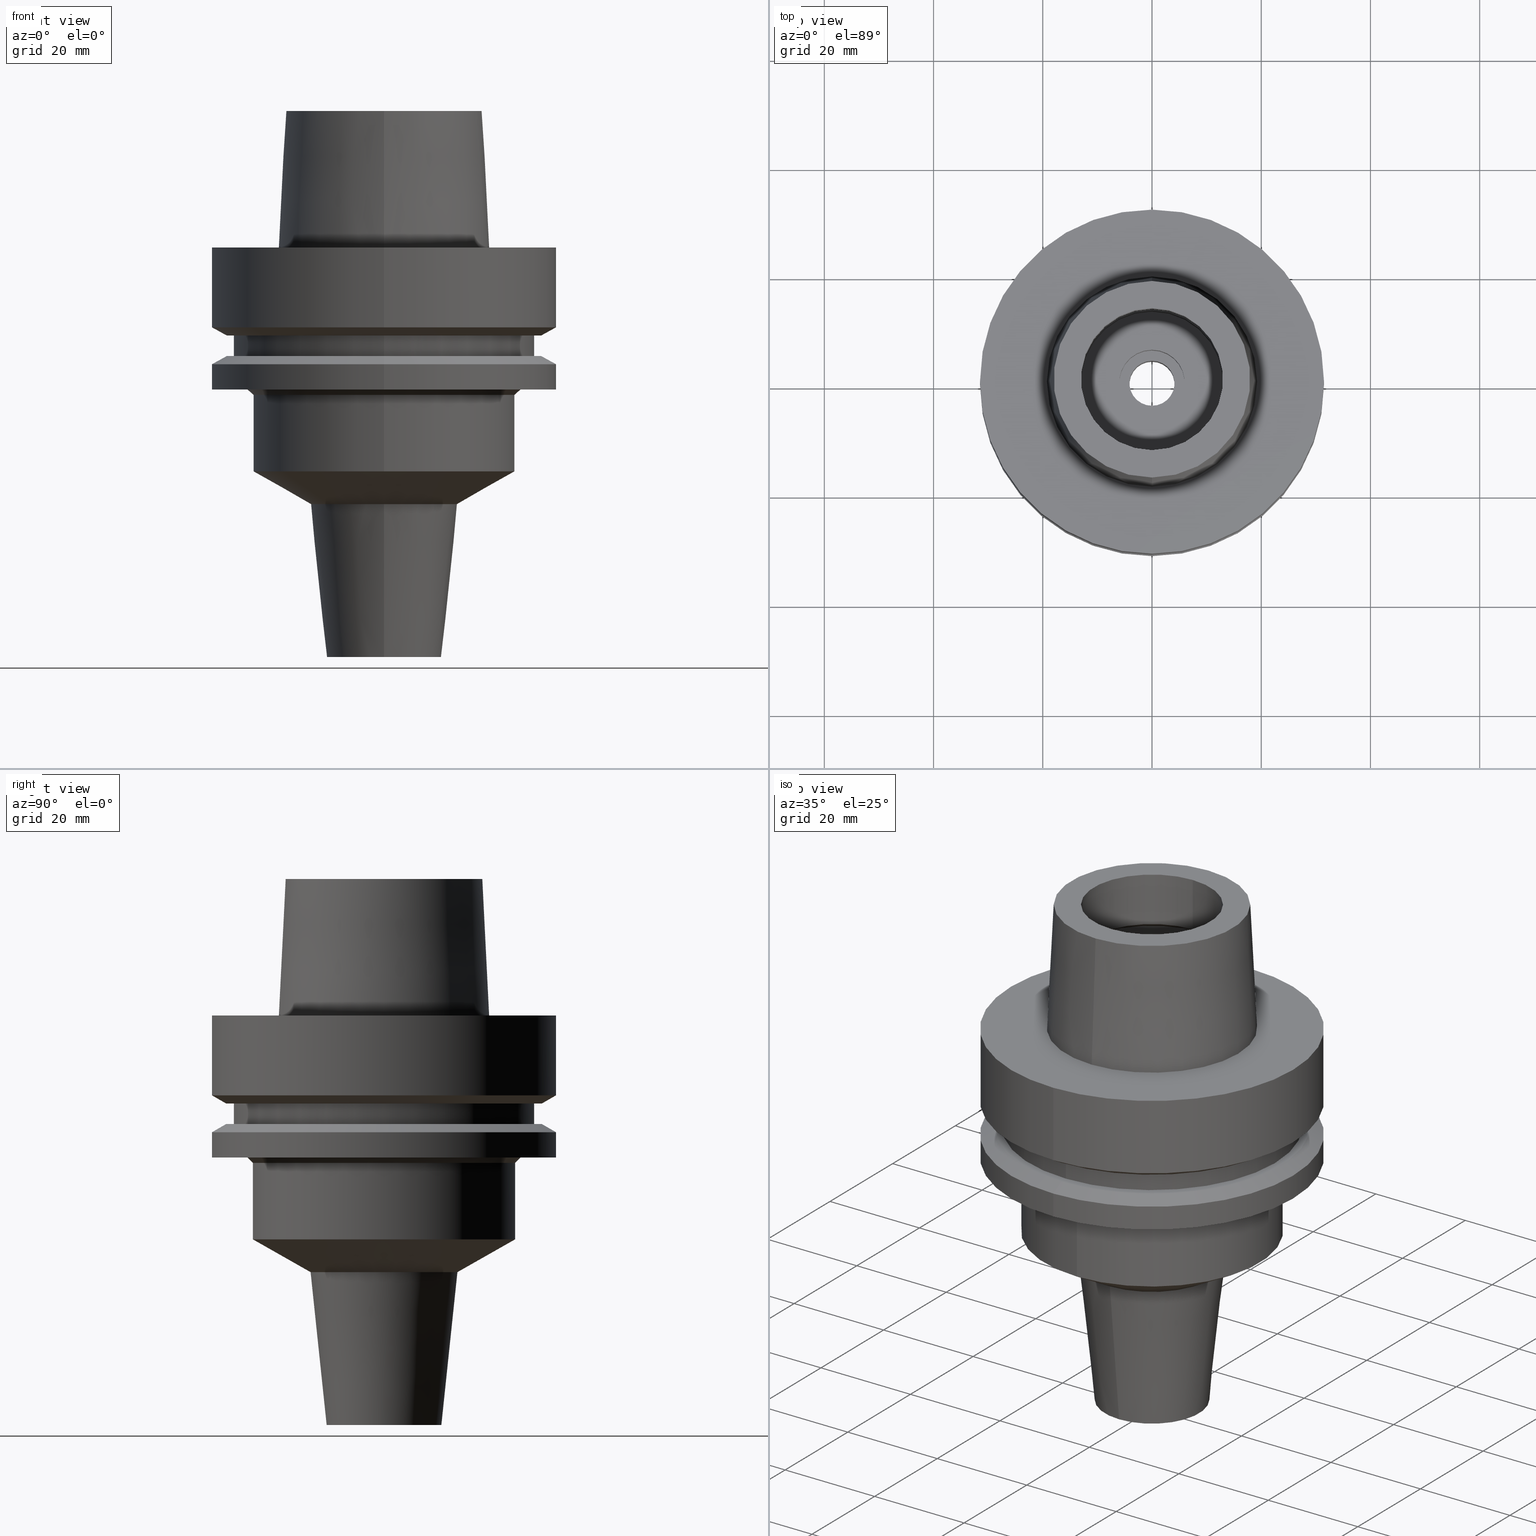
[diagram: canonical four-view strip — front | top / right | iso, engineering-drawing reading convention]
A machine part, canonical four-view strip (front | top / right | iso — engineering-drawing reading convention). The complete STEP part file that produces these views, byte-faithful:
ISO-10303-21;
HEADER;
FILE_DESCRIPTION((''),'2;1');
FILE_NAME('HSK-F63-HDC12S-75','2018-02-23T',('ykawabe'),(''),
'CREO PARAMETRIC BY PTC INC, 2016380','CREO PARAMETRIC BY PTC INC, 2016380','');
FILE_SCHEMA(('AUTOMOTIVE_DESIGN { 1 0 10303 214 1 1 1 1 }'));
ENDSEC;
DATA;
#17=CARTESIAN_POINT('',(0.E0,0.E0,2.5E1));
#18=DIRECTION('',(0.E0,0.E0,-1.E0));
#19=DIRECTION('',(0.E0,-1.E0,0.E0));
#20=AXIS2_PLACEMENT_3D('',#17,#18,#19);
#22=DRAUGHTING_PRE_DEFINED_CURVE_FONT('continuous');
#23=CURVE_STYLE('',#22,POSITIVE_LENGTH_MEASURE(2.E-2),#4);
#24=PRESENTATION_STYLE_ASSIGNMENT((#23));
#25=STYLED_ITEM('',(#24),#21);
#26=CARTESIAN_POINT('',(0.E0,0.E0,2.5E1));
#27=DIRECTION('',(0.E0,0.E0,-1.E0));
#28=DIRECTION('',(0.E0,1.E0,0.E0));
#29=AXIS2_PLACEMENT_3D('',#26,#27,#28);
#31=CURVE_STYLE('',#22,POSITIVE_LENGTH_MEASURE(2.E-2),#4);
#32=PRESENTATION_STYLE_ASSIGNMENT((#31));
#33=STYLED_ITEM('',(#32),#30);
#34=CARTESIAN_POINT('',(0.E0,0.E0,2.5E1));
#35=DIRECTION('',(0.E0,0.E0,1.E0));
#36=DIRECTION('',(0.E0,-1.E0,0.E0));
#37=AXIS2_PLACEMENT_3D('',#34,#35,#36);
#39=CURVE_STYLE('',#22,POSITIVE_LENGTH_MEASURE(2.E-2),#4);
#40=PRESENTATION_STYLE_ASSIGNMENT((#39));
#41=STYLED_ITEM('',(#40),#38);
#42=CARTESIAN_POINT('',(0.E0,0.E0,2.5E1));
#43=DIRECTION('',(0.E0,0.E0,1.E0));
#44=DIRECTION('',(0.E0,1.E0,0.E0));
#45=AXIS2_PLACEMENT_3D('',#42,#43,#44);
#47=CURVE_STYLE('',#22,POSITIVE_LENGTH_MEASURE(2.E-2),#4);
#48=PRESENTATION_STYLE_ASSIGNMENT((#47));
#49=STYLED_ITEM('',(#48),#46);
#50=DIRECTION('',(0.E0,-4.993752584487E-2,-9.987523434328E-1));
#51=VECTOR('',#50,2.503123037897E1);
#52=CARTESIAN_POINT('',(0.E0,-1.800000182882E1,2.5E1));
#53=LINE('',#52,#51);
#54=CURVE_STYLE('',#22,POSITIVE_LENGTH_MEASURE(2.E-2),#4);
#55=PRESENTATION_STYLE_ASSIGNMENT((#54));
#56=STYLED_ITEM('',(#55),#53);
#57=DIRECTION('',(0.E0,4.993752584487E-2,-9.987523434328E-1));
#58=VECTOR('',#57,2.503123037897E1);
#59=CARTESIAN_POINT('',(0.E0,1.800000182882E1,2.5E1));
#60=LINE('',#59,#58);
#61=CURVE_STYLE('',#22,POSITIVE_LENGTH_MEASURE(2.E-2),#4);
#62=PRESENTATION_STYLE_ASSIGNMENT((#61));
#63=STYLED_ITEM('',(#62),#60);
#64=CARTESIAN_POINT('',(0.E0,0.E0,0.E0));
#65=DIRECTION('',(0.E0,0.E0,-1.E0));
#66=DIRECTION('',(0.E0,-1.E0,0.E0));
#67=AXIS2_PLACEMENT_3D('',#64,#65,#66);
#69=CURVE_STYLE('',#22,POSITIVE_LENGTH_MEASURE(2.E-2),#4);
#70=PRESENTATION_STYLE_ASSIGNMENT((#69));
#71=STYLED_ITEM('',(#70),#68);
#72=CARTESIAN_POINT('',(0.E0,0.E0,0.E0));
#73=DIRECTION('',(0.E0,0.E0,-1.E0));
#74=DIRECTION('',(0.E0,1.E0,0.E0));
#75=AXIS2_PLACEMENT_3D('',#72,#73,#74);
#77=CURVE_STYLE('',#22,POSITIVE_LENGTH_MEASURE(2.E-2),#4);
#78=PRESENTATION_STYLE_ASSIGNMENT((#77));
#79=STYLED_ITEM('',(#78),#76);
#80=CARTESIAN_POINT('',(0.E0,0.E0,2.273736754432E-13));
#81=DIRECTION('',(0.E0,0.E0,1.E0));
#82=DIRECTION('',(0.E0,-1.E0,0.E0));
#83=AXIS2_PLACEMENT_3D('',#80,#81,#82);
#85=CURVE_STYLE('',#22,POSITIVE_LENGTH_MEASURE(2.E-2),#4);
#86=PRESENTATION_STYLE_ASSIGNMENT((#85));
#87=STYLED_ITEM('',(#86),#84);
#88=CARTESIAN_POINT('',(0.E0,0.E0,2.273736754432E-13));
#89=DIRECTION('',(0.E0,0.E0,1.E0));
#90=DIRECTION('',(0.E0,1.E0,0.E0));
#91=AXIS2_PLACEMENT_3D('',#88,#89,#90);
#93=CURVE_STYLE('',#22,POSITIVE_LENGTH_MEASURE(2.E-2),#4);
#94=PRESENTATION_STYLE_ASSIGNMENT((#93));
#95=STYLED_ITEM('',(#94),#92);
#96=DIRECTION('',(0.E0,-4.130355870613E-14,-1.E0));
#97=VECTOR('',#96,1.462250092524E1);
#98=CARTESIAN_POINT('',(0.E0,-3.15E1,0.E0));
#99=LINE('',#98,#97);
#100=CURVE_STYLE('',#22,POSITIVE_LENGTH_MEASURE(2.E-2),#4);
#101=PRESENTATION_STYLE_ASSIGNMENT((#100));
#102=STYLED_ITEM('',(#101),#99);
#103=DIRECTION('',(0.E0,4.130355870613E-14,-1.E0));
#104=VECTOR('',#103,1.462250092524E1);
#105=CARTESIAN_POINT('',(0.E0,3.15E1,0.E0));
#106=LINE('',#105,#104);
#107=CURVE_STYLE('',#22,POSITIVE_LENGTH_MEASURE(2.E-2),#4);
#108=PRESENTATION_STYLE_ASSIGNMENT((#107));
#109=STYLED_ITEM('',(#108),#106);
#110=DIRECTION('',(0.E0,-8.660254037844E-1,-5.000000000001E-1));
#111=VECTOR('',#110,3.004998149520E0);
#112=CARTESIAN_POINT('',(0.E0,3.15E1,-1.462250092524E1));
#113=LINE('',#112,#111);
#114=CURVE_STYLE('',#22,POSITIVE_LENGTH_MEASURE(2.E-2),#4);
#115=PRESENTATION_STYLE_ASSIGNMENT((#114));
#116=STYLED_ITEM('',(#115),#113);
#117=CARTESIAN_POINT('',(0.E0,0.E0,-1.462250092524E1));
#118=DIRECTION('',(0.E0,0.E0,1.E0));
#119=DIRECTION('',(0.E0,-1.E0,0.E0));
#120=AXIS2_PLACEMENT_3D('',#117,#118,#119);
#122=CURVE_STYLE('',#22,POSITIVE_LENGTH_MEASURE(2.E-2),#4);
#123=PRESENTATION_STYLE_ASSIGNMENT((#122));
#124=STYLED_ITEM('',(#123),#121);
#125=CARTESIAN_POINT('',(0.E0,0.E0,-1.462250092524E1));
#126=DIRECTION('',(0.E0,0.E0,1.E0));
#127=DIRECTION('',(0.E0,1.E0,0.E0));
#128=AXIS2_PLACEMENT_3D('',#125,#126,#127);
#130=CURVE_STYLE('',#22,POSITIVE_LENGTH_MEASURE(2.E-2),#4);
#131=PRESENTATION_STYLE_ASSIGNMENT((#130));
#132=STYLED_ITEM('',(#131),#129);
#133=DIRECTION('',(0.E0,8.660254037844E-1,-5.000000000001E-1));
#134=VECTOR('',#133,3.004998149520E0);
#135=CARTESIAN_POINT('',(0.E0,-3.15E1,-1.462250092524E1));
#136=LINE('',#135,#134);
#137=CURVE_STYLE('',#22,POSITIVE_LENGTH_MEASURE(2.E-2),#4);
#138=PRESENTATION_STYLE_ASSIGNMENT((#137));
#139=STYLED_ITEM('',(#138),#136);
#140=CARTESIAN_POINT('',(0.E0,0.E0,-1.6125E1));
#141=DIRECTION('',(0.E0,0.E0,1.E0));
#142=DIRECTION('',(0.E0,-1.E0,0.E0));
#143=AXIS2_PLACEMENT_3D('',#140,#141,#142);
#145=CURVE_STYLE('',#22,POSITIVE_LENGTH_MEASURE(2.E-2),#4);
#146=PRESENTATION_STYLE_ASSIGNMENT((#145));
#147=STYLED_ITEM('',(#146),#144);
#148=CARTESIAN_POINT('',(0.E0,0.E0,-1.6125E1));
#149=DIRECTION('',(0.E0,0.E0,1.E0));
#150=DIRECTION('',(0.E0,1.E0,0.E0));
#151=AXIS2_PLACEMENT_3D('',#148,#149,#150);
#153=CURVE_STYLE('',#22,POSITIVE_LENGTH_MEASURE(2.E-2),#4);
#154=PRESENTATION_STYLE_ASSIGNMENT((#153));
#155=STYLED_ITEM('',(#154),#152);
#156=CARTESIAN_POINT('',(0.E0,0.E0,-1.6125E1));
#157=DIRECTION('',(0.E0,0.E0,-1.E0));
#158=DIRECTION('',(0.E0,-1.E0,0.E0));
#159=AXIS2_PLACEMENT_3D('',#156,#157,#158);
#161=CURVE_STYLE('',#22,POSITIVE_LENGTH_MEASURE(2.E-2),#4);
#162=PRESENTATION_STYLE_ASSIGNMENT((#161));
#163=STYLED_ITEM('',(#162),#160);
#164=CARTESIAN_POINT('',(0.E0,0.E0,-1.6125E1));
#165=DIRECTION('',(0.E0,0.E0,-1.E0));
#166=DIRECTION('',(0.E0,1.E0,0.E0));
#167=AXIS2_PLACEMENT_3D('',#164,#165,#166);
#169=CURVE_STYLE('',#22,POSITIVE_LENGTH_MEASURE(2.E-2),#4);
#170=PRESENTATION_STYLE_ASSIGNMENT((#169));
#171=STYLED_ITEM('',(#170),#168);
#172=DIRECTION('',(0.E0,0.E0,-1.E0));
#173=VECTOR('',#172,3.75E0);
#174=CARTESIAN_POINT('',(0.E0,-2.75E1,-1.6125E1));
#175=LINE('',#174,#173);
#176=CURVE_STYLE('',#22,POSITIVE_LENGTH_MEASURE(2.E-2),#4);
#177=PRESENTATION_STYLE_ASSIGNMENT((#176));
#178=STYLED_ITEM('',(#177),#175);
#179=DIRECTION('',(0.E0,0.E0,-1.E0));
#180=VECTOR('',#179,3.75E0);
#181=CARTESIAN_POINT('',(0.E0,2.75E1,-1.6125E1));
#182=LINE('',#181,#180);
#183=CURVE_STYLE('',#22,POSITIVE_LENGTH_MEASURE(2.E-2),#4);
#184=PRESENTATION_STYLE_ASSIGNMENT((#183));
#185=STYLED_ITEM('',(#184),#182);
#186=CARTESIAN_POINT('',(0.E0,0.E0,-1.9875E1));
#187=DIRECTION('',(0.E0,0.E0,-1.E0));
#188=DIRECTION('',(0.E0,-1.E0,0.E0));
#189=AXIS2_PLACEMENT_3D('',#186,#187,#188);
#191=CURVE_STYLE('',#22,POSITIVE_LENGTH_MEASURE(2.E-2),#4);
#192=PRESENTATION_STYLE_ASSIGNMENT((#191));
#193=STYLED_ITEM('',(#192),#190);
#194=CARTESIAN_POINT('',(0.E0,0.E0,-1.9875E1));
#195=DIRECTION('',(0.E0,0.E0,-1.E0));
#196=DIRECTION('',(0.E0,1.E0,0.E0));
#197=AXIS2_PLACEMENT_3D('',#194,#195,#196);
#199=CURVE_STYLE('',#22,POSITIVE_LENGTH_MEASURE(2.E-2),#4);
#200=PRESENTATION_STYLE_ASSIGNMENT((#199));
#201=STYLED_ITEM('',(#200),#198);
#202=CARTESIAN_POINT('',(0.E0,0.E0,-1.9875E1));
#203=DIRECTION('',(0.E0,0.E0,1.E0));
#204=DIRECTION('',(0.E0,-1.E0,0.E0));
#205=AXIS2_PLACEMENT_3D('',#202,#203,#204);
#207=CURVE_STYLE('',#22,POSITIVE_LENGTH_MEASURE(2.E-2),#4);
#208=PRESENTATION_STYLE_ASSIGNMENT((#207));
#209=STYLED_ITEM('',(#208),#206);
#210=CARTESIAN_POINT('',(0.E0,0.E0,-1.9875E1));
#211=DIRECTION('',(0.E0,0.E0,1.E0));
#212=DIRECTION('',(0.E0,1.E0,0.E0));
#213=AXIS2_PLACEMENT_3D('',#210,#211,#212);
#215=CURVE_STYLE('',#22,POSITIVE_LENGTH_MEASURE(2.E-2),#4);
#216=PRESENTATION_STYLE_ASSIGNMENT((#215));
#217=STYLED_ITEM('',(#216),#214);
#218=DIRECTION('',(0.E0,-8.660254037844E-1,-5.000000000001E-1));
#219=VECTOR('',#218,3.004998149520E0);
#220=CARTESIAN_POINT('',(0.E0,-2.889759526419E1,-1.9875E1));
#221=LINE('',#220,#219);
#222=CURVE_STYLE('',#22,POSITIVE_LENGTH_MEASURE(2.E-2),#4);
#223=PRESENTATION_STYLE_ASSIGNMENT((#222));
#224=STYLED_ITEM('',(#223),#221);
#225=CARTESIAN_POINT('',(0.E0,0.E0,-2.137749907476E1));
#226=DIRECTION('',(0.E0,0.E0,-1.E0));
#227=DIRECTION('',(0.E0,-1.E0,0.E0));
#228=AXIS2_PLACEMENT_3D('',#225,#226,#227);
#230=CURVE_STYLE('',#22,POSITIVE_LENGTH_MEASURE(2.E-2),#4);
#231=PRESENTATION_STYLE_ASSIGNMENT((#230));
#232=STYLED_ITEM('',(#231),#229);
#233=DIRECTION('',(0.E0,8.660254037844E-1,-5.000000000001E-1));
#234=VECTOR('',#233,3.004998149520E0);
#235=CARTESIAN_POINT('',(0.E0,2.889759526419E1,-1.9875E1));
#236=LINE('',#235,#234);
#237=CURVE_STYLE('',#22,POSITIVE_LENGTH_MEASURE(2.E-2),#4);
#238=PRESENTATION_STYLE_ASSIGNMENT((#237));
#239=STYLED_ITEM('',(#238),#236);
#240=CARTESIAN_POINT('',(0.E0,0.E0,-2.137749907476E1));
#241=DIRECTION('',(0.E0,0.E0,-1.E0));
#242=DIRECTION('',(0.E0,1.E0,0.E0));
#243=AXIS2_PLACEMENT_3D('',#240,#241,#242);
#245=CURVE_STYLE('',#22,POSITIVE_LENGTH_MEASURE(2.E-2),#4);
#246=PRESENTATION_STYLE_ASSIGNMENT((#245));
#247=STYLED_ITEM('',(#246),#244);
#248=DIRECTION('',(0.E0,-1.306568316943E-13,-1.E0));
#249=VECTOR('',#248,4.622500925241E0);
#250=CARTESIAN_POINT('',(0.E0,3.15E1,-2.137749907476E1));
#251=LINE('',#250,#249);
#252=CURVE_STYLE('',#22,POSITIVE_LENGTH_MEASURE(2.E-2),#4);
#253=PRESENTATION_STYLE_ASSIGNMENT((#252));
#254=STYLED_ITEM('',(#253),#251);
#255=DIRECTION('',(0.E0,1.306568316943E-13,-1.E0));
#256=VECTOR('',#255,4.622500925241E0);
#257=CARTESIAN_POINT('',(0.E0,-3.15E1,-2.137749907476E1));
#258=LINE('',#257,#256);
#259=CURVE_STYLE('',#22,POSITIVE_LENGTH_MEASURE(2.E-2),#4);
#260=PRESENTATION_STYLE_ASSIGNMENT((#259));
#261=STYLED_ITEM('',(#260),#258);
#262=CARTESIAN_POINT('',(0.E0,0.E0,-2.6E1));
#263=DIRECTION('',(0.E0,0.E0,1.E0));
#264=DIRECTION('',(0.E0,-1.E0,0.E0));
#265=AXIS2_PLACEMENT_3D('',#262,#263,#264);
#267=CURVE_STYLE('',#22,POSITIVE_LENGTH_MEASURE(2.E-2),#4);
#268=PRESENTATION_STYLE_ASSIGNMENT((#267));
#269=STYLED_ITEM('',(#268),#266);
#270=CARTESIAN_POINT('',(0.E0,0.E0,-2.6E1));
#271=DIRECTION('',(0.E0,0.E0,1.E0));
#272=DIRECTION('',(0.E0,1.E0,0.E0));
#273=AXIS2_PLACEMENT_3D('',#270,#271,#272);
#275=CURVE_STYLE('',#22,POSITIVE_LENGTH_MEASURE(2.E-2),#4);
#276=PRESENTATION_STYLE_ASSIGNMENT((#275));
#277=STYLED_ITEM('',(#276),#274);
#278=CARTESIAN_POINT('',(0.E0,0.E0,-2.6E1));
#279=DIRECTION('',(0.E0,0.E0,-1.E0));
#280=DIRECTION('',(0.E0,-1.E0,0.E0));
#281=AXIS2_PLACEMENT_3D('',#278,#279,#280);
#283=CURVE_STYLE('',#22,POSITIVE_LENGTH_MEASURE(2.E-2),#4);
#284=PRESENTATION_STYLE_ASSIGNMENT((#283));
#285=STYLED_ITEM('',(#284),#282);
#286=CARTESIAN_POINT('',(0.E0,0.E0,-2.6E1));
#287=DIRECTION('',(0.E0,0.E0,-1.E0));
#288=DIRECTION('',(0.E0,1.E0,0.E0));
#289=AXIS2_PLACEMENT_3D('',#286,#287,#288);
#291=CURVE_STYLE('',#22,POSITIVE_LENGTH_MEASURE(2.E-2),#4);
#292=PRESENTATION_STYLE_ASSIGNMENT((#291));
#293=STYLED_ITEM('',(#292),#290);
#294=DIRECTION('',(0.E0,7.071067811865E-1,-7.071067811865E-1));
#295=VECTOR('',#294,1.414213562373E0);
#296=CARTESIAN_POINT('',(0.E0,-2.5E1,-2.6E1));
#297=LINE('',#296,#295);
#298=CURVE_STYLE('',#22,POSITIVE_LENGTH_MEASURE(2.E-2),#4);
#299=PRESENTATION_STYLE_ASSIGNMENT((#298));
#300=STYLED_ITEM('',(#299),#297);
#301=CARTESIAN_POINT('',(0.E0,0.E0,-2.7E1));
#302=DIRECTION('',(0.E0,0.E0,-1.E0));
#303=DIRECTION('',(0.E0,-1.E0,0.E0));
#304=AXIS2_PLACEMENT_3D('',#301,#302,#303);
#306=CURVE_STYLE('',#22,POSITIVE_LENGTH_MEASURE(2.E-2),#4);
#307=PRESENTATION_STYLE_ASSIGNMENT((#306));
#308=STYLED_ITEM('',(#307),#305);
#309=DIRECTION('',(0.E0,-7.071067811865E-1,-7.071067811865E-1));
#310=VECTOR('',#309,1.414213562373E0);
#311=CARTESIAN_POINT('',(0.E0,2.5E1,-2.6E1));
#312=LINE('',#311,#310);
#313=CURVE_STYLE('',#22,POSITIVE_LENGTH_MEASURE(2.E-2),#4);
#314=PRESENTATION_STYLE_ASSIGNMENT((#313));
#315=STYLED_ITEM('',(#314),#312);
#316=CARTESIAN_POINT('',(0.E0,0.E0,-2.7E1));
#317=DIRECTION('',(0.E0,0.E0,-1.E0));
#318=DIRECTION('',(0.E0,1.E0,0.E0));
#319=AXIS2_PLACEMENT_3D('',#316,#317,#318);
#321=CURVE_STYLE('',#22,POSITIVE_LENGTH_MEASURE(2.E-2),#4);
#322=PRESENTATION_STYLE_ASSIGNMENT((#321));
#323=STYLED_ITEM('',(#322),#320);
#324=DIRECTION('',(0.E0,4.212503362006E-14,-1.E0));
#325=VECTOR('',#324,1.4E1);
#326=CARTESIAN_POINT('',(0.E0,2.4E1,-2.7E1));
#327=LINE('',#326,#325);
#328=CURVE_STYLE('',#22,POSITIVE_LENGTH_MEASURE(2.E-2),#4);
#329=PRESENTATION_STYLE_ASSIGNMENT((#328));
#330=STYLED_ITEM('',(#329),#327);
#331=DIRECTION('',(0.E0,-4.212503362006E-14,-1.E0));
#332=VECTOR('',#331,1.4E1);
#333=CARTESIAN_POINT('',(0.E0,-2.4E1,-2.7E1));
#334=LINE('',#333,#332);
#335=CURVE_STYLE('',#22,POSITIVE_LENGTH_MEASURE(2.E-2),#4);
#336=PRESENTATION_STYLE_ASSIGNMENT((#335));
#337=STYLED_ITEM('',(#336),#334);
#338=CARTESIAN_POINT('',(0.E0,0.E0,-4.1E1));
#339=DIRECTION('',(0.E0,0.E0,1.E0));
#340=DIRECTION('',(0.E0,1.E0,0.E0));
#341=AXIS2_PLACEMENT_3D('',#338,#339,#340);
#343=CURVE_STYLE('',#22,POSITIVE_LENGTH_MEASURE(2.E-2),#4);
#344=PRESENTATION_STYLE_ASSIGNMENT((#343));
#345=STYLED_ITEM('',(#344),#342);
#346=DIRECTION('',(0.E0,8.694949295053E-1,-4.939418665841E-1));
#347=VECTOR('',#346,1.214127240966E1);
#348=CARTESIAN_POINT('',(0.E0,-2.4E1,-4.1E1));
#349=LINE('',#348,#347);
#350=CURVE_STYLE('',#22,POSITIVE_LENGTH_MEASURE(2.E-2),#4);
#351=PRESENTATION_STYLE_ASSIGNMENT((#350));
#352=STYLED_ITEM('',(#351),#349);
#353=CARTESIAN_POINT('',(0.E0,0.E0,-4.699708275674E1));
#354=DIRECTION('',(0.E0,0.E0,-1.E0));
#355=DIRECTION('',(0.E0,-1.E0,0.E0));
#356=AXIS2_PLACEMENT_3D('',#353,#354,#355);
#358=CURVE_STYLE('',#22,POSITIVE_LENGTH_MEASURE(2.E-2),#4);
#359=PRESENTATION_STYLE_ASSIGNMENT((#358));
#360=STYLED_ITEM('',(#359),#357);
#361=DIRECTION('',(0.E0,-8.694949295053E-1,-4.939418665841E-1));
#362=VECTOR('',#361,1.214127240966E1);
#363=CARTESIAN_POINT('',(0.E0,2.4E1,-4.1E1));
#364=LINE('',#363,#362);
#365=CURVE_STYLE('',#22,POSITIVE_LENGTH_MEASURE(2.E-2),#4);
#366=PRESENTATION_STYLE_ASSIGNMENT((#365));
#367=STYLED_ITEM('',(#366),#364);
#368=CARTESIAN_POINT('',(0.E0,0.E0,-4.1E1));
#369=DIRECTION('',(0.E0,0.E0,1.E0));
#370=DIRECTION('',(0.E0,-1.E0,0.E0));
#371=AXIS2_PLACEMENT_3D('',#368,#369,#370);
#373=CURVE_STYLE('',#22,POSITIVE_LENGTH_MEASURE(2.E-2),#4);
#374=PRESENTATION_STYLE_ASSIGNMENT((#373));
#375=STYLED_ITEM('',(#374),#372);
#376=DIRECTION('',(0.E0,-1.045284632677E-1,-9.945218953683E-1));
#377=VECTOR('',#376,2.815716514004E1);
#378=CARTESIAN_POINT('',(0.E0,1.344322520206E1,-4.699708275673E1));
#379=LINE('',#378,#377);
#380=CURVE_STYLE('',#22,POSITIVE_LENGTH_MEASURE(2.E-2),#4);
#381=PRESENTATION_STYLE_ASSIGNMENT((#380));
#382=STYLED_ITEM('',(#381),#379);
#383=CARTESIAN_POINT('',(0.E0,0.E0,-4.699708275673E1));
#384=DIRECTION('',(0.E0,0.E0,1.E0));
#385=DIRECTION('',(0.E0,-1.E0,0.E0));
#386=AXIS2_PLACEMENT_3D('',#383,#384,#385);
#388=CURVE_STYLE('',#22,POSITIVE_LENGTH_MEASURE(2.E-2),#4);
#389=PRESENTATION_STYLE_ASSIGNMENT((#388));
#390=STYLED_ITEM('',(#389),#387);
#391=DIRECTION('',(0.E0,1.045284632677E-1,-9.945218953683E-1));
#392=VECTOR('',#391,2.815716514004E1);
#393=CARTESIAN_POINT('',(0.E0,-1.344322520206E1,-4.699708275673E1));
#394=LINE('',#393,#392);
#395=CURVE_STYLE('',#22,POSITIVE_LENGTH_MEASURE(2.E-2),#4);
#396=PRESENTATION_STYLE_ASSIGNMENT((#395));
#397=STYLED_ITEM('',(#396),#394);
#398=CARTESIAN_POINT('',(0.E0,0.E0,-7.5E1));
#399=DIRECTION('',(0.E0,0.E0,1.E0));
#400=DIRECTION('',(0.E0,-1.E0,0.E0));
#401=AXIS2_PLACEMENT_3D('',#398,#399,#400);
#403=CURVE_STYLE('',#22,POSITIVE_LENGTH_MEASURE(2.E-2),#4);
#404=PRESENTATION_STYLE_ASSIGNMENT((#403));
#405=STYLED_ITEM('',(#404),#402);
#406=CARTESIAN_POINT('',(0.E0,0.E0,-7.5E1));
#407=DIRECTION('',(0.E0,0.E0,1.E0));
#408=DIRECTION('',(0.E0,1.E0,0.E0));
#409=AXIS2_PLACEMENT_3D('',#406,#407,#408);
#411=CURVE_STYLE('',#22,POSITIVE_LENGTH_MEASURE(2.E-2),#4);
#412=PRESENTATION_STYLE_ASSIGNMENT((#411));
#413=STYLED_ITEM('',(#412),#410);
#414=CARTESIAN_POINT('',(0.E0,0.E0,-7.5E1));
#415=DIRECTION('',(0.E0,0.E0,-1.E0));
#416=DIRECTION('',(0.E0,-1.E0,0.E0));
#417=AXIS2_PLACEMENT_3D('',#414,#415,#416);
#419=CURVE_STYLE('',#22,POSITIVE_LENGTH_MEASURE(2.E-2),#4);
#420=PRESENTATION_STYLE_ASSIGNMENT((#419));
#421=STYLED_ITEM('',(#420),#418);
#422=CARTESIAN_POINT('',(0.E0,0.E0,-7.5E1));
#423=DIRECTION('',(0.E0,0.E0,-1.E0));
#424=DIRECTION('',(0.E0,1.E0,0.E0));
#425=AXIS2_PLACEMENT_3D('',#422,#423,#424);
#427=CURVE_STYLE('',#22,POSITIVE_LENGTH_MEASURE(2.E-2),#4);
#428=PRESENTATION_STYLE_ASSIGNMENT((#427));
#429=STYLED_ITEM('',(#428),#426);
#430=DIRECTION('',(0.E0,0.E0,1.E0));
#431=VECTOR('',#430,3.6E1);
#432=CARTESIAN_POINT('',(0.E0,-6.E0,-7.5E1));
#433=LINE('',#432,#431);
#434=CURVE_STYLE('',#22,POSITIVE_LENGTH_MEASURE(2.E-2),#4);
#435=PRESENTATION_STYLE_ASSIGNMENT((#434));
#436=STYLED_ITEM('',(#435),#433);
#437=DIRECTION('',(0.E0,0.E0,1.E0));
#438=VECTOR('',#437,3.6E1);
#439=CARTESIAN_POINT('',(0.E0,6.E0,-7.5E1));
#440=LINE('',#439,#438);
#441=CURVE_STYLE('',#22,POSITIVE_LENGTH_MEASURE(2.E-2),#4);
#442=PRESENTATION_STYLE_ASSIGNMENT((#441));
#443=STYLED_ITEM('',(#442),#440);
#444=CARTESIAN_POINT('',(0.E0,0.E0,-3.9E1));
#445=DIRECTION('',(0.E0,0.E0,-1.E0));
#446=DIRECTION('',(0.E0,-1.E0,0.E0));
#447=AXIS2_PLACEMENT_3D('',#444,#445,#446);
#449=CURVE_STYLE('',#22,POSITIVE_LENGTH_MEASURE(2.E-2),#4);
#450=PRESENTATION_STYLE_ASSIGNMENT((#449));
#451=STYLED_ITEM('',(#450),#448);
#452=CARTESIAN_POINT('',(0.E0,0.E0,-3.9E1));
#453=DIRECTION('',(0.E0,0.E0,-1.E0));
#454=DIRECTION('',(0.E0,1.E0,0.E0));
#455=AXIS2_PLACEMENT_3D('',#452,#453,#454);
#457=CURVE_STYLE('',#22,POSITIVE_LENGTH_MEASURE(2.E-2),#4);
#458=PRESENTATION_STYLE_ASSIGNMENT((#457));
#459=STYLED_ITEM('',(#458),#456);
#460=CARTESIAN_POINT('',(0.E0,0.E0,-3.9E1));
#461=DIRECTION('',(0.E0,0.E0,1.E0));
#462=DIRECTION('',(0.E0,-1.E0,0.E0));
#463=AXIS2_PLACEMENT_3D('',#460,#461,#462);
#465=CURVE_STYLE('',#22,POSITIVE_LENGTH_MEASURE(2.E-2),#4);
#466=PRESENTATION_STYLE_ASSIGNMENT((#465));
#467=STYLED_ITEM('',(#466),#464);
#468=CARTESIAN_POINT('',(0.E0,0.E0,-3.9E1));
#469=DIRECTION('',(0.E0,0.E0,1.E0));
#470=DIRECTION('',(0.E0,1.E0,0.E0));
#471=AXIS2_PLACEMENT_3D('',#468,#469,#470);
#473=CURVE_STYLE('',#22,POSITIVE_LENGTH_MEASURE(2.E-2),#4);
#474=PRESENTATION_STYLE_ASSIGNMENT((#473));
#475=STYLED_ITEM('',(#474),#472);
#476=DIRECTION('',(0.E0,0.E0,1.E0));
#477=VECTOR('',#476,1.E1);
#478=CARTESIAN_POINT('',(0.E0,-6.25E0,-3.9E1));
#479=LINE('',#478,#477);
#480=CURVE_STYLE('',#22,POSITIVE_LENGTH_MEASURE(2.E-2),#4);
#481=PRESENTATION_STYLE_ASSIGNMENT((#480));
#482=STYLED_ITEM('',(#481),#479);
#483=DIRECTION('',(0.E0,0.E0,1.E0));
#484=VECTOR('',#483,1.E1);
#485=CARTESIAN_POINT('',(0.E0,6.25E0,-3.9E1));
#486=LINE('',#485,#484);
#487=CURVE_STYLE('',#22,POSITIVE_LENGTH_MEASURE(2.E-2),#4);
#488=PRESENTATION_STYLE_ASSIGNMENT((#487));
#489=STYLED_ITEM('',(#488),#486);
#490=CARTESIAN_POINT('',(0.E0,0.E0,-2.9E1));
#491=DIRECTION('',(0.E0,0.E0,1.E0));
#492=DIRECTION('',(0.E0,-1.E0,0.E0));
#493=AXIS2_PLACEMENT_3D('',#490,#491,#492);
#495=CURVE_STYLE('',#22,POSITIVE_LENGTH_MEASURE(2.E-2),#4);
#496=PRESENTATION_STYLE_ASSIGNMENT((#495));
#497=STYLED_ITEM('',(#496),#494);
#498=CARTESIAN_POINT('',(0.E0,0.E0,-2.9E1));
#499=DIRECTION('',(0.E0,0.E0,1.E0));
#500=DIRECTION('',(0.E0,1.E0,0.E0));
#501=AXIS2_PLACEMENT_3D('',#498,#499,#500);
#503=CURVE_STYLE('',#22,POSITIVE_LENGTH_MEASURE(2.E-2),#4);
#504=PRESENTATION_STYLE_ASSIGNMENT((#503));
#505=STYLED_ITEM('',(#504),#502);
#506=CARTESIAN_POINT('',(0.E0,0.E0,-2.9E1));
#507=DIRECTION('',(0.E0,0.E0,-1.E0));
#508=DIRECTION('',(0.E0,-1.E0,0.E0));
#509=AXIS2_PLACEMENT_3D('',#506,#507,#508);
#511=CURVE_STYLE('',#22,POSITIVE_LENGTH_MEASURE(2.E-2),#4);
#512=PRESENTATION_STYLE_ASSIGNMENT((#511));
#513=STYLED_ITEM('',(#512),#510);
#514=CARTESIAN_POINT('',(0.E0,0.E0,-2.9E1));
#515=DIRECTION('',(0.E0,0.E0,-1.E0));
#516=DIRECTION('',(0.E0,1.E0,0.E0));
#517=AXIS2_PLACEMENT_3D('',#514,#515,#516);
#519=CURVE_STYLE('',#22,POSITIVE_LENGTH_MEASURE(2.E-2),#4);
#520=PRESENTATION_STYLE_ASSIGNMENT((#519));
#521=STYLED_ITEM('',(#520),#518);
#522=DIRECTION('',(0.E0,0.E0,1.E0));
#523=VECTOR('',#522,1.205E1);
#524=CARTESIAN_POINT('',(0.E0,-4.125E0,-2.9E1));
#525=LINE('',#524,#523);
#526=CURVE_STYLE('',#22,POSITIVE_LENGTH_MEASURE(2.E-2),#4);
#527=PRESENTATION_STYLE_ASSIGNMENT((#526));
#528=STYLED_ITEM('',(#527),#525);
#529=DIRECTION('',(0.E0,0.E0,1.E0));
#530=VECTOR('',#529,1.205E1);
#531=CARTESIAN_POINT('',(0.E0,4.125E0,-2.9E1));
#532=LINE('',#531,#530);
#533=CURVE_STYLE('',#22,POSITIVE_LENGTH_MEASURE(2.E-2),#4);
#534=PRESENTATION_STYLE_ASSIGNMENT((#533));
#535=STYLED_ITEM('',(#534),#532);
#536=CARTESIAN_POINT('',(0.E0,0.E0,-1.695E1));
#537=DIRECTION('',(0.E0,0.E0,-1.E0));
#538=DIRECTION('',(0.E0,-1.E0,0.E0));
#539=AXIS2_PLACEMENT_3D('',#536,#537,#538);
#541=CURVE_STYLE('',#22,POSITIVE_LENGTH_MEASURE(2.E-2),#4);
#542=PRESENTATION_STYLE_ASSIGNMENT((#541));
#543=STYLED_ITEM('',(#542),#540);
#544=CARTESIAN_POINT('',(0.E0,0.E0,-1.695E1));
#545=DIRECTION('',(0.E0,0.E0,-1.E0));
#546=DIRECTION('',(0.E0,1.E0,0.E0));
#547=AXIS2_PLACEMENT_3D('',#544,#545,#546);
#549=CURVE_STYLE('',#22,POSITIVE_LENGTH_MEASURE(2.E-2),#4);
#550=PRESENTATION_STYLE_ASSIGNMENT((#549));
#551=STYLED_ITEM('',(#550),#548);
#552=CARTESIAN_POINT('',(0.E0,0.E0,-1.695E1));
#553=DIRECTION('',(0.E0,0.E0,1.E0));
#554=DIRECTION('',(0.E0,-1.E0,0.E0));
#555=AXIS2_PLACEMENT_3D('',#552,#553,#554);
#557=CURVE_STYLE('',#22,POSITIVE_LENGTH_MEASURE(2.E-2),#4);
#558=PRESENTATION_STYLE_ASSIGNMENT((#557));
#559=STYLED_ITEM('',(#558),#556);
#560=CARTESIAN_POINT('',(0.E0,0.E0,-1.695E1));
#561=DIRECTION('',(0.E0,0.E0,1.E0));
#562=DIRECTION('',(0.E0,1.E0,0.E0));
#563=AXIS2_PLACEMENT_3D('',#560,#561,#562);
#565=CURVE_STYLE('',#22,POSITIVE_LENGTH_MEASURE(2.E-2),#4);
#566=PRESENTATION_STYLE_ASSIGNMENT((#565));
#567=STYLED_ITEM('',(#566),#564);
#568=DIRECTION('',(0.E0,0.E0,1.E0));
#569=VECTOR('',#568,7.E0);
#570=CARTESIAN_POINT('',(0.E0,-6.E0,-1.695E1));
#571=LINE('',#570,#569);
#572=CURVE_STYLE('',#22,POSITIVE_LENGTH_MEASURE(2.E-2),#4);
#573=PRESENTATION_STYLE_ASSIGNMENT((#572));
#574=STYLED_ITEM('',(#573),#571);
#575=DIRECTION('',(0.E0,0.E0,1.E0));
#576=VECTOR('',#575,7.E0);
#577=CARTESIAN_POINT('',(0.E0,6.E0,-1.695E1));
#578=LINE('',#577,#576);
#579=CURVE_STYLE('',#22,POSITIVE_LENGTH_MEASURE(2.E-2),#4);
#580=PRESENTATION_STYLE_ASSIGNMENT((#579));
#581=STYLED_ITEM('',(#580),#578);
#582=CARTESIAN_POINT('',(0.E0,0.E0,-9.95E0));
#583=DIRECTION('',(0.E0,0.E0,-1.E0));
#584=DIRECTION('',(0.E0,-1.E0,0.E0));
#585=AXIS2_PLACEMENT_3D('',#582,#583,#584);
#587=CURVE_STYLE('',#22,POSITIVE_LENGTH_MEASURE(2.E-2),#4);
#588=PRESENTATION_STYLE_ASSIGNMENT((#587));
#589=STYLED_ITEM('',(#588),#586);
#590=CARTESIAN_POINT('',(0.E0,0.E0,-9.95E0));
#591=DIRECTION('',(0.E0,0.E0,-1.E0));
#592=DIRECTION('',(0.E0,1.E0,0.E0));
#593=AXIS2_PLACEMENT_3D('',#590,#591,#592);
#595=CURVE_STYLE('',#22,POSITIVE_LENGTH_MEASURE(2.E-2),#4);
#596=PRESENTATION_STYLE_ASSIGNMENT((#595));
#597=STYLED_ITEM('',(#596),#594);
#598=CARTESIAN_POINT('',(0.E0,0.E0,-9.95E0));
#599=DIRECTION('',(0.E0,0.E0,1.E0));
#600=DIRECTION('',(0.E0,-1.E0,0.E0));
#601=AXIS2_PLACEMENT_3D('',#598,#599,#600);
#603=CURVE_STYLE('',#22,POSITIVE_LENGTH_MEASURE(2.E-2),#4);
#604=PRESENTATION_STYLE_ASSIGNMENT((#603));
#605=STYLED_ITEM('',(#604),#602);
#606=CARTESIAN_POINT('',(0.E0,0.E0,-9.95E0));
#607=DIRECTION('',(0.E0,0.E0,1.E0));
#608=DIRECTION('',(0.E0,1.E0,0.E0));
#609=AXIS2_PLACEMENT_3D('',#606,#607,#608);
#611=CURVE_STYLE('',#22,POSITIVE_LENGTH_MEASURE(2.E-2),#4);
#612=PRESENTATION_STYLE_ASSIGNMENT((#611));
#613=STYLED_ITEM('',(#612),#610);
#614=DIRECTION('',(0.E0,0.E0,1.E0));
#615=VECTOR('',#614,9.95E0);
#616=CARTESIAN_POINT('',(0.E0,-1.3E1,-9.95E0));
#617=LINE('',#616,#615);
#618=CURVE_STYLE('',#22,POSITIVE_LENGTH_MEASURE(2.E-2),#4);
#619=PRESENTATION_STYLE_ASSIGNMENT((#618));
#620=STYLED_ITEM('',(#619),#617);
#621=CARTESIAN_POINT('',(0.E0,0.E0,0.E0));
#622=DIRECTION('',(0.E0,0.E0,-1.E0));
#623=DIRECTION('',(0.E0,-1.E0,0.E0));
#624=AXIS2_PLACEMENT_3D('',#621,#622,#623);
#626=CURVE_STYLE('',#22,POSITIVE_LENGTH_MEASURE(2.E-2),#4);
#627=PRESENTATION_STYLE_ASSIGNMENT((#626));
#628=STYLED_ITEM('',(#627),#625);
#629=DIRECTION('',(0.E0,0.E0,1.E0));
#630=VECTOR('',#629,9.95E0);
#631=CARTESIAN_POINT('',(0.E0,1.3E1,-9.95E0));
#632=LINE('',#631,#630);
#633=CURVE_STYLE('',#22,POSITIVE_LENGTH_MEASURE(2.E-2),#4);
#634=PRESENTATION_STYLE_ASSIGNMENT((#633));
#635=STYLED_ITEM('',(#634),#632);
#636=DIRECTION('',(0.E0,0.E0,1.E0));
#637=VECTOR('',#636,4.984757729336E-2);
#638=CARTESIAN_POINT('',(0.E0,1.3E1,0.E0));
#639=LINE('',#638,#637);
#640=CURVE_STYLE('',#22,POSITIVE_LENGTH_MEASURE(2.E-2),#4);
#641=PRESENTATION_STYLE_ASSIGNMENT((#640));
#642=STYLED_ITEM('',(#641),#639);
#643=CARTESIAN_POINT('',(0.E0,0.E0,0.E0));
#644=DIRECTION('',(0.E0,0.E0,1.E0));
#645=DIRECTION('',(0.E0,-1.E0,0.E0));
#646=AXIS2_PLACEMENT_3D('',#643,#644,#645);
#648=CURVE_STYLE('',#22,POSITIVE_LENGTH_MEASURE(2.E-2),#4);
#649=PRESENTATION_STYLE_ASSIGNMENT((#648));
#650=STYLED_ITEM('',(#649),#647);
#651=DIRECTION('',(0.E0,0.E0,1.E0));
#652=VECTOR('',#651,4.984757729336E-2);
#653=CARTESIAN_POINT('',(0.E0,-1.3E1,0.E0));
#654=LINE('',#653,#652);
#655=CURVE_STYLE('',#22,POSITIVE_LENGTH_MEASURE(2.E-2),#4);
#656=PRESENTATION_STYLE_ASSIGNMENT((#655));
#657=STYLED_ITEM('',(#656),#654);
#658=CARTESIAN_POINT('',(0.E0,0.E0,4.984757729337E-2));
#659=DIRECTION('',(0.E0,0.E0,1.E0));
#660=DIRECTION('',(0.E0,1.E0,0.E0));
#661=AXIS2_PLACEMENT_3D('',#658,#659,#660);
#663=CURVE_STYLE('',#22,POSITIVE_LENGTH_MEASURE(2.E-2),#4);
#664=PRESENTATION_STYLE_ASSIGNMENT((#663));
#665=STYLED_ITEM('',(#664),#662);
#666=CARTESIAN_POINT('',(0.E0,-1.E1,5.246E0));
#667=DIRECTION('',(-1.E0,0.E0,0.E0));
#668=DIRECTION('',(0.E0,-5.E-1,-8.660254037844E-1));
#669=AXIS2_PLACEMENT_3D('',#666,#667,#668);
#671=CURVE_STYLE('',#22,POSITIVE_LENGTH_MEASURE(2.E-2),#4);
#672=PRESENTATION_STYLE_ASSIGNMENT((#671));
#673=STYLED_ITEM('',(#672),#670);
#674=CARTESIAN_POINT('',(0.E0,0.E0,5.246E0));
#675=DIRECTION('',(0.E0,0.E0,-1.E0));
#676=DIRECTION('',(0.E0,-1.E0,0.E0));
#677=AXIS2_PLACEMENT_3D('',#674,#675,#676);
#679=CURVE_STYLE('',#22,POSITIVE_LENGTH_MEASURE(2.E-2),#4);
#680=PRESENTATION_STYLE_ASSIGNMENT((#679));
#681=STYLED_ITEM('',(#680),#678);
#682=CARTESIAN_POINT('',(0.E0,1.E1,5.246E0));
#683=DIRECTION('',(1.E0,0.E0,0.E0));
#684=DIRECTION('',(0.E0,5.E-1,-8.660254037844E-1));
#685=AXIS2_PLACEMENT_3D('',#682,#683,#684);
#687=CURVE_STYLE('',#22,POSITIVE_LENGTH_MEASURE(2.E-2),#4);
#688=PRESENTATION_STYLE_ASSIGNMENT((#687));
#689=STYLED_ITEM('',(#688),#686);
#690=CARTESIAN_POINT('',(0.E0,0.E0,5.246E0));
#691=DIRECTION('',(0.E0,0.E0,-1.E0));
#692=DIRECTION('',(0.E0,1.E0,0.E0));
#693=AXIS2_PLACEMENT_3D('',#690,#691,#692);
#695=CURVE_STYLE('',#22,POSITIVE_LENGTH_MEASURE(2.E-2),#4);
#696=PRESENTATION_STYLE_ASSIGNMENT((#695));
#697=STYLED_ITEM('',(#696),#694);
#698=CARTESIAN_POINT('',(0.E0,0.E0,4.984757729337E-2));
#699=DIRECTION('',(0.E0,0.E0,1.E0));
#700=DIRECTION('',(0.E0,-1.E0,0.E0));
#701=AXIS2_PLACEMENT_3D('',#698,#699,#700);
#703=CURVE_STYLE('',#22,POSITIVE_LENGTH_MEASURE(2.E-2),#4);
#704=PRESENTATION_STYLE_ASSIGNMENT((#703));
#705=STYLED_ITEM('',(#704),#702);
#706=DIRECTION('',(0.E0,-1.200783808181E-13,1.E0));
#707=VECTOR('',#706,8.017974596218E0);
#708=CARTESIAN_POINT('',(0.E0,1.6E1,5.246E0));
#709=LINE('',#708,#707);
#710=CURVE_STYLE('',#22,POSITIVE_LENGTH_MEASURE(2.E-2),#4);
#711=PRESENTATION_STYLE_ASSIGNMENT((#710));
#712=STYLED_ITEM('',(#711),#709);
#713=DIRECTION('',(0.E0,1.200783808181E-13,1.E0));
#714=VECTOR('',#713,8.017974596218E0);
#715=CARTESIAN_POINT('',(0.E0,-1.6E1,5.246E0));
#716=LINE('',#715,#714);
#717=CURVE_STYLE('',#22,POSITIVE_LENGTH_MEASURE(2.E-2),#4);
#718=PRESENTATION_STYLE_ASSIGNMENT((#717));
#719=STYLED_ITEM('',(#718),#716);
#720=CARTESIAN_POINT('',(0.E0,0.E0,1.326397459622E1));
#721=DIRECTION('',(0.E0,0.E0,1.E0));
#722=DIRECTION('',(0.E0,1.E0,0.E0));
#723=AXIS2_PLACEMENT_3D('',#720,#721,#722);
#725=CURVE_STYLE('',#22,POSITIVE_LENGTH_MEASURE(2.E-2),#4);
#726=PRESENTATION_STYLE_ASSIGNMENT((#725));
#727=STYLED_ITEM('',(#726),#724);
#728=DIRECTION('',(0.E0,8.660254037850E-1,4.999999999990E-1));
#729=VECTOR('',#728,3.464101615133E0);
#730=CARTESIAN_POINT('',(0.E0,-1.6E1,1.326397459622E1));
#731=LINE('',#730,#729);
#732=CURVE_STYLE('',#22,POSITIVE_LENGTH_MEASURE(2.E-2),#4);
#733=PRESENTATION_STYLE_ASSIGNMENT((#732));
#734=STYLED_ITEM('',(#733),#731);
#735=CARTESIAN_POINT('',(0.E0,0.E0,1.499602540378E1));
#736=DIRECTION('',(0.E0,0.E0,-1.E0));
#737=DIRECTION('',(0.E0,-1.E0,0.E0));
#738=AXIS2_PLACEMENT_3D('',#735,#736,#737);
#740=CURVE_STYLE('',#22,POSITIVE_LENGTH_MEASURE(2.E-2),#4);
#741=PRESENTATION_STYLE_ASSIGNMENT((#740));
#742=STYLED_ITEM('',(#741),#739);
#743=DIRECTION('',(0.E0,-8.660254037850E-1,4.999999999990E-1));
#744=VECTOR('',#743,3.464101615133E0);
#745=CARTESIAN_POINT('',(0.E0,1.6E1,1.326397459622E1));
#746=LINE('',#745,#744);
#747=CURVE_STYLE('',#22,POSITIVE_LENGTH_MEASURE(2.E-2),#4);
#748=PRESENTATION_STYLE_ASSIGNMENT((#747));
#749=STYLED_ITEM('',(#748),#746);
#750=CARTESIAN_POINT('',(0.E0,0.E0,1.499602540378E1));
#751=DIRECTION('',(0.E0,0.E0,-1.E0));
#752=DIRECTION('',(0.E0,1.E0,0.E0));
#753=AXIS2_PLACEMENT_3D('',#750,#751,#752);
#755=CURVE_STYLE('',#22,POSITIVE_LENGTH_MEASURE(2.E-2),#4);
#756=PRESENTATION_STYLE_ASSIGNMENT((#755));
#757=STYLED_ITEM('',(#756),#754);
#758=CARTESIAN_POINT('',(0.E0,0.E0,1.326397459622E1));
#759=DIRECTION('',(0.E0,0.E0,1.E0));
#760=DIRECTION('',(0.E0,-1.E0,0.E0));
#761=AXIS2_PLACEMENT_3D('',#758,#759,#760);
#763=CURVE_STYLE('',#22,POSITIVE_LENGTH_MEASURE(2.E-2),#4);
#764=PRESENTATION_STYLE_ASSIGNMENT((#763));
#765=STYLED_ITEM('',(#764),#762);
#766=DIRECTION('',(0.E0,-9.659541928455E-14,1.E0));
#767=VECTOR('',#766,1.000397459622E1);
#768=CARTESIAN_POINT('',(0.E0,1.3E1,1.499602540378E1));
#769=LINE('',#768,#767);
#770=CURVE_STYLE('',#22,POSITIVE_LENGTH_MEASURE(2.E-2),#4);
#771=PRESENTATION_STYLE_ASSIGNMENT((#770));
#772=STYLED_ITEM('',(#771),#769);
#773=DIRECTION('',(0.E0,9.659541928455E-14,1.E0));
#774=VECTOR('',#773,1.000397459622E1);
#775=CARTESIAN_POINT('',(0.E0,-1.3E1,1.499602540378E1));
#776=LINE('',#775,#774);
#777=CURVE_STYLE('',#22,POSITIVE_LENGTH_MEASURE(2.E-2),#4);
#778=PRESENTATION_STYLE_ASSIGNMENT((#777));
#779=STYLED_ITEM('',(#778),#776);
#780=CARTESIAN_POINT('',(0.E0,-1.800000182882E1,2.5E1));
#781=CARTESIAN_POINT('',(0.E0,1.800000182882E1,2.5E1));
#782=VERTEX_POINT('',#780);
#783=VERTEX_POINT('',#781);
#784=CARTESIAN_POINT('',(0.E0,-1.3E1,2.5E1));
#785=CARTESIAN_POINT('',(0.E0,1.3E1,2.5E1));
#786=VERTEX_POINT('',#784);
#787=VERTEX_POINT('',#785);
#788=CARTESIAN_POINT('',(0.E0,1.3E1,1.499602540378E1));
#789=VERTEX_POINT('',#788);
#790=CARTESIAN_POINT('',(0.E0,-1.3E1,1.499602540378E1));
#791=VERTEX_POINT('',#790);
#792=CARTESIAN_POINT('',(0.E0,1.6E1,1.326397459622E1));
#793=VERTEX_POINT('',#792);
#794=CARTESIAN_POINT('',(0.E0,-1.6E1,1.326397459622E1));
#795=VERTEX_POINT('',#794);
#796=CARTESIAN_POINT('',(0.E0,1.6E1,5.246E0));
#797=VERTEX_POINT('',#796);
#798=CARTESIAN_POINT('',(0.E0,-1.6E1,5.246E0));
#799=VERTEX_POINT('',#798);
#800=CARTESIAN_POINT('',(0.E0,1.3E1,4.984757729337E-2));
#801=VERTEX_POINT('',#800);
#802=CARTESIAN_POINT('',(0.E0,-1.3E1,4.984757729337E-2));
#803=VERTEX_POINT('',#802);
#804=CARTESIAN_POINT('',(0.E0,1.3E1,0.E0));
#805=VERTEX_POINT('',#804);
#806=CARTESIAN_POINT('',(0.E0,-1.3E1,0.E0));
#807=VERTEX_POINT('',#806);
#808=CARTESIAN_POINT('',(0.E0,1.3E1,-9.95E0));
#809=VERTEX_POINT('',#808);
#810=CARTESIAN_POINT('',(0.E0,-1.3E1,-9.95E0));
#811=VERTEX_POINT('',#810);
#812=CARTESIAN_POINT('',(0.E0,-6.E0,-9.95E0));
#813=CARTESIAN_POINT('',(0.E0,6.E0,-9.95E0));
#814=VERTEX_POINT('',#812);
#815=VERTEX_POINT('',#813);
#816=CARTESIAN_POINT('',(0.E0,6.E0,-1.695E1));
#817=VERTEX_POINT('',#816);
#818=CARTESIAN_POINT('',(0.E0,-6.E0,-1.695E1));
#819=VERTEX_POINT('',#818);
#820=CARTESIAN_POINT('',(0.E0,-4.125E0,-1.695E1));
#821=CARTESIAN_POINT('',(0.E0,4.125E0,-1.695E1));
#822=VERTEX_POINT('',#820);
#823=VERTEX_POINT('',#821);
#824=CARTESIAN_POINT('',(0.E0,4.125E0,-2.9E1));
#825=VERTEX_POINT('',#824);
#826=CARTESIAN_POINT('',(0.E0,-4.125E0,-2.9E1));
#827=VERTEX_POINT('',#826);
#828=CARTESIAN_POINT('',(0.E0,-6.25E0,-2.9E1));
#829=CARTESIAN_POINT('',(0.E0,6.25E0,-2.9E1));
#830=VERTEX_POINT('',#828);
#831=VERTEX_POINT('',#829);
#832=CARTESIAN_POINT('',(0.E0,6.25E0,-3.9E1));
#833=VERTEX_POINT('',#832);
#834=CARTESIAN_POINT('',(0.E0,-6.25E0,-3.9E1));
#835=VERTEX_POINT('',#834);
#836=CARTESIAN_POINT('',(0.E0,-6.E0,-3.9E1));
#837=CARTESIAN_POINT('',(0.E0,6.E0,-3.9E1));
#838=VERTEX_POINT('',#836);
#839=VERTEX_POINT('',#837);
#840=CARTESIAN_POINT('',(0.E0,6.E0,-7.5E1));
#841=VERTEX_POINT('',#840);
#842=CARTESIAN_POINT('',(0.E0,-6.E0,-7.5E1));
#843=VERTEX_POINT('',#842);
#844=CARTESIAN_POINT('',(0.E0,-1.05E1,-7.5E1));
#845=CARTESIAN_POINT('',(0.E0,1.05E1,-7.5E1));
#846=VERTEX_POINT('',#844);
#847=VERTEX_POINT('',#845);
#848=CARTESIAN_POINT('',(0.E0,1.344322520206E1,-4.699708275673E1));
#849=VERTEX_POINT('',#848);
#850=CARTESIAN_POINT('',(0.E0,-1.344322520206E1,-4.699708275673E1));
#851=VERTEX_POINT('',#850);
#852=CARTESIAN_POINT('',(0.E0,2.4E1,-4.1E1));
#853=VERTEX_POINT('',#852);
#854=CARTESIAN_POINT('',(0.E0,-2.4E1,-4.1E1));
#855=VERTEX_POINT('',#854);
#856=CARTESIAN_POINT('',(0.E0,2.4E1,-2.7E1));
#857=VERTEX_POINT('',#856);
#858=CARTESIAN_POINT('',(0.E0,-2.4E1,-2.7E1));
#859=VERTEX_POINT('',#858);
#860=CARTESIAN_POINT('',(0.E0,2.5E1,-2.6E1));
#861=VERTEX_POINT('',#860);
#862=CARTESIAN_POINT('',(0.E0,-2.5E1,-2.6E1));
#863=VERTEX_POINT('',#862);
#864=CARTESIAN_POINT('',(0.E0,-3.15E1,-2.6E1));
#865=CARTESIAN_POINT('',(0.E0,3.15E1,-2.6E1));
#866=VERTEX_POINT('',#864);
#867=VERTEX_POINT('',#865);
#868=CARTESIAN_POINT('',(0.E0,3.15E1,-2.137749907476E1));
#869=VERTEX_POINT('',#868);
#870=CARTESIAN_POINT('',(0.E0,-3.15E1,-2.137749907476E1));
#871=VERTEX_POINT('',#870);
#872=CARTESIAN_POINT('',(0.E0,2.889759526419E1,-1.9875E1));
#873=VERTEX_POINT('',#872);
#874=CARTESIAN_POINT('',(0.E0,-2.889759526419E1,-1.9875E1));
#875=VERTEX_POINT('',#874);
#876=CARTESIAN_POINT('',(0.E0,-2.75E1,-1.9875E1));
#877=CARTESIAN_POINT('',(0.E0,2.75E1,-1.9875E1));
#878=VERTEX_POINT('',#876);
#879=VERTEX_POINT('',#877);
#880=CARTESIAN_POINT('',(0.E0,2.75E1,-1.6125E1));
#881=VERTEX_POINT('',#880);
#882=CARTESIAN_POINT('',(0.E0,-2.75E1,-1.6125E1));
#883=VERTEX_POINT('',#882);
#884=CARTESIAN_POINT('',(0.E0,-2.889759526419E1,-1.6125E1));
#885=CARTESIAN_POINT('',(0.E0,2.889759526419E1,-1.6125E1));
#886=VERTEX_POINT('',#884);
#887=VERTEX_POINT('',#885);
#888=CARTESIAN_POINT('',(0.E0,3.15E1,-1.462250092524E1));
#889=VERTEX_POINT('',#888);
#890=CARTESIAN_POINT('',(0.E0,-3.15E1,-1.462250092524E1));
#891=VERTEX_POINT('',#890);
#892=CARTESIAN_POINT('',(0.E0,3.15E1,0.E0));
#893=VERTEX_POINT('',#892);
#894=CARTESIAN_POINT('',(0.E0,-3.15E1,0.E0));
#895=VERTEX_POINT('',#894);
#896=CARTESIAN_POINT('',(0.E0,-1.924999954280E1,2.273736754432E-13));
#897=CARTESIAN_POINT('',(0.E0,1.924999954280E1,2.273736754432E-13));
#898=VERTEX_POINT('',#896);
#899=VERTEX_POINT('',#897);
#900=CARTESIAN_POINT('',(0.E0,0.E0,2.5E1));
#901=DIRECTION('',(0.E0,0.E0,-1.E0));
#902=DIRECTION('',(0.E0,-1.E0,0.E0));
#903=AXIS2_PLACEMENT_3D('',#900,#901,#902);
#904=PLANE('',#903);
#906=ORIENTED_EDGE('',*,*,#905,.T.);
#908=ORIENTED_EDGE('',*,*,#907,.T.);
#909=EDGE_LOOP('',(#906,#908));
#910=FACE_OUTER_BOUND('',#909,.F.);
#912=ORIENTED_EDGE('',*,*,#911,.T.);
#914=ORIENTED_EDGE('',*,*,#913,.T.);
#915=EDGE_LOOP('',(#912,#914));
#916=FACE_BOUND('',#915,.F.);
#918=CARTESIAN_POINT('',(0.E0,0.E0,1.25E1));
#919=DIRECTION('',(0.E0,0.E0,-1.E0));
#920=DIRECTION('',(0.E0,-1.E0,0.E0));
#921=AXIS2_PLACEMENT_3D('',#918,#919,#920);
#922=CONICAL_SURFACE('',#921,1.862500068581E1,2.8624E0);
#924=ORIENTED_EDGE('',*,*,#923,.F.);
#925=ORIENTED_EDGE('',*,*,#905,.F.);
#927=ORIENTED_EDGE('',*,*,#926,.T.);
#929=ORIENTED_EDGE('',*,*,#928,.F.);
#930=EDGE_LOOP('',(#924,#925,#927,#929));
#931=FACE_OUTER_BOUND('',#930,.F.);
#933=CARTESIAN_POINT('',(0.E0,0.E0,1.25E1));
#934=DIRECTION('',(0.E0,0.E0,-1.E0));
#935=DIRECTION('',(0.E0,-1.E0,0.E0));
#936=AXIS2_PLACEMENT_3D('',#933,#934,#935);
#937=CONICAL_SURFACE('',#936,1.862500068581E1,2.8624E0);
#938=ORIENTED_EDGE('',*,*,#923,.T.);
#940=ORIENTED_EDGE('',*,*,#939,.F.);
#941=ORIENTED_EDGE('',*,*,#926,.F.);
#942=ORIENTED_EDGE('',*,*,#907,.F.);
#943=EDGE_LOOP('',(#938,#940,#941,#942));
#944=FACE_OUTER_BOUND('',#943,.F.);
#946=CARTESIAN_POINT('',(0.E0,0.E0,0.E0));
#947=DIRECTION('',(0.E0,0.E0,-1.E0));
#948=DIRECTION('',(0.E0,-1.E0,0.E0));
#949=AXIS2_PLACEMENT_3D('',#946,#947,#948);
#950=PLANE('',#949);
#952=ORIENTED_EDGE('',*,*,#951,.T.);
#954=ORIENTED_EDGE('',*,*,#953,.T.);
#955=EDGE_LOOP('',(#952,#954));
#956=FACE_OUTER_BOUND('',#955,.F.);
#957=ORIENTED_EDGE('',*,*,#939,.T.);
#958=ORIENTED_EDGE('',*,*,#928,.T.);
#959=EDGE_LOOP('',(#957,#958));
#960=FACE_BOUND('',#959,.F.);
#962=CARTESIAN_POINT('',(0.E0,0.E0,3.E1));
#963=DIRECTION('',(0.E0,0.E0,-1.E0));
#964=DIRECTION('',(0.E0,-1.E0,0.E0));
#965=AXIS2_PLACEMENT_3D('',#962,#963,#964);
#966=CYLINDRICAL_SURFACE('',#965,3.15E1);
#968=ORIENTED_EDGE('',*,*,#967,.F.);
#969=ORIENTED_EDGE('',*,*,#951,.F.);
#971=ORIENTED_EDGE('',*,*,#970,.T.);
#973=ORIENTED_EDGE('',*,*,#972,.F.);
#974=EDGE_LOOP('',(#968,#969,#971,#973));
#975=FACE_OUTER_BOUND('',#974,.F.);
#977=CARTESIAN_POINT('',(0.E0,0.E0,3.E1));
#978=DIRECTION('',(0.E0,0.E0,-1.E0));
#979=DIRECTION('',(0.E0,-1.E0,0.E0));
#980=AXIS2_PLACEMENT_3D('',#977,#978,#979);
#981=CYLINDRICAL_SURFACE('',#980,3.15E1);
#982=ORIENTED_EDGE('',*,*,#967,.T.);
#984=ORIENTED_EDGE('',*,*,#983,.F.);
#985=ORIENTED_EDGE('',*,*,#970,.F.);
#986=ORIENTED_EDGE('',*,*,#953,.F.);
#987=EDGE_LOOP('',(#982,#984,#985,#986));
#988=FACE_OUTER_BOUND('',#987,.F.);
#990=CARTESIAN_POINT('',(0.E0,0.E0,-1.537375046262E1));
#991=DIRECTION('',(0.E0,0.E0,1.E0));
#992=DIRECTION('',(0.E0,1.E0,0.E0));
#993=AXIS2_PLACEMENT_3D('',#990,#991,#992);
#994=CONICAL_SURFACE('',#993,3.019879763210E1,6.E1);
#996=ORIENTED_EDGE('',*,*,#995,.T.);
#998=ORIENTED_EDGE('',*,*,#997,.F.);
#1000=ORIENTED_EDGE('',*,*,#999,.F.);
#1001=ORIENTED_EDGE('',*,*,#983,.T.);
#1002=EDGE_LOOP('',(#996,#998,#1000,#1001));
#1003=FACE_OUTER_BOUND('',#1002,.F.);
#1005=CARTESIAN_POINT('',(0.E0,0.E0,-1.537375046262E1));
#1006=DIRECTION('',(0.E0,0.E0,1.E0));
#1007=DIRECTION('',(0.E0,1.E0,0.E0));
#1008=AXIS2_PLACEMENT_3D('',#1005,#1006,#1007);
#1009=CONICAL_SURFACE('',#1008,3.019879763210E1,6.E1);
#1010=ORIENTED_EDGE('',*,*,#995,.F.);
#1011=ORIENTED_EDGE('',*,*,#972,.T.);
#1012=ORIENTED_EDGE('',*,*,#999,.T.);
#1014=ORIENTED_EDGE('',*,*,#1013,.F.);
#1015=EDGE_LOOP('',(#1010,#1011,#1012,#1014));
#1016=FACE_OUTER_BOUND('',#1015,.F.);
#1018=CARTESIAN_POINT('',(0.E0,0.E0,-1.6125E1));
#1019=DIRECTION('',(0.E0,0.E0,-1.E0));
#1020=DIRECTION('',(0.E0,-1.E0,0.E0));
#1021=AXIS2_PLACEMENT_3D('',#1018,#1019,#1020);
#1022=PLANE('',#1021);
#1023=ORIENTED_EDGE('',*,*,#997,.T.);
#1024=ORIENTED_EDGE('',*,*,#1013,.T.);
#1025=EDGE_LOOP('',(#1023,#1024));
#1026=FACE_OUTER_BOUND('',#1025,.F.);
#1028=ORIENTED_EDGE('',*,*,#1027,.T.);
#1030=ORIENTED_EDGE('',*,*,#1029,.T.);
#1031=EDGE_LOOP('',(#1028,#1030));
#1032=FACE_BOUND('',#1031,.F.);
#1034=CARTESIAN_POINT('',(0.E0,0.E0,3.E1));
#1035=DIRECTION('',(0.E0,0.E0,-1.E0));
#1036=DIRECTION('',(0.E0,-1.E0,0.E0));
#1037=AXIS2_PLACEMENT_3D('',#1034,#1035,#1036);
#1038=CYLINDRICAL_SURFACE('',#1037,2.75E1);
#1040=ORIENTED_EDGE('',*,*,#1039,.F.);
#1041=ORIENTED_EDGE('',*,*,#1027,.F.);
#1043=ORIENTED_EDGE('',*,*,#1042,.T.);
#1045=ORIENTED_EDGE('',*,*,#1044,.F.);
#1046=EDGE_LOOP('',(#1040,#1041,#1043,#1045));
#1047=FACE_OUTER_BOUND('',#1046,.F.);
#1049=CARTESIAN_POINT('',(0.E0,0.E0,3.E1));
#1050=DIRECTION('',(0.E0,0.E0,-1.E0));
#1051=DIRECTION('',(0.E0,-1.E0,0.E0));
#1052=AXIS2_PLACEMENT_3D('',#1049,#1050,#1051);
#1053=CYLINDRICAL_SURFACE('',#1052,2.75E1);
#1054=ORIENTED_EDGE('',*,*,#1039,.T.);
#1056=ORIENTED_EDGE('',*,*,#1055,.F.);
#1057=ORIENTED_EDGE('',*,*,#1042,.F.);
#1058=ORIENTED_EDGE('',*,*,#1029,.F.);
#1059=EDGE_LOOP('',(#1054,#1056,#1057,#1058));
#1060=FACE_OUTER_BOUND('',#1059,.F.);
#1062=CARTESIAN_POINT('',(0.E0,0.E0,-1.9875E1));
#1063=DIRECTION('',(0.E0,0.E0,-1.E0));
#1064=DIRECTION('',(0.E0,-1.E0,0.E0));
#1065=AXIS2_PLACEMENT_3D('',#1062,#1063,#1064);
#1066=PLANE('',#1065);
#1068=ORIENTED_EDGE('',*,*,#1067,.T.);
#1070=ORIENTED_EDGE('',*,*,#1069,.T.);
#1071=EDGE_LOOP('',(#1068,#1070));
#1072=FACE_OUTER_BOUND('',#1071,.F.);
#1073=ORIENTED_EDGE('',*,*,#1055,.T.);
#1074=ORIENTED_EDGE('',*,*,#1044,.T.);
#1075=EDGE_LOOP('',(#1073,#1074));
#1076=FACE_BOUND('',#1075,.F.);
#1078=CARTESIAN_POINT('',(0.E0,0.E0,-2.062624953738E1));
#1079=DIRECTION('',(0.E0,0.E0,-1.E0));
#1080=DIRECTION('',(0.E0,-1.E0,0.E0));
#1081=AXIS2_PLACEMENT_3D('',#1078,#1079,#1080);
#1082=CONICAL_SURFACE('',#1081,3.019879763210E1,6.E1);
#1084=ORIENTED_EDGE('',*,*,#1083,.F.);
#1085=ORIENTED_EDGE('',*,*,#1067,.F.);
#1087=ORIENTED_EDGE('',*,*,#1086,.T.);
#1089=ORIENTED_EDGE('',*,*,#1088,.T.);
#1090=EDGE_LOOP('',(#1084,#1085,#1087,#1089));
#1091=FACE_OUTER_BOUND('',#1090,.F.);
#1093=CARTESIAN_POINT('',(0.E0,0.E0,-2.062624953738E1));
#1094=DIRECTION('',(0.E0,0.E0,-1.E0));
#1095=DIRECTION('',(0.E0,-1.E0,0.E0));
#1096=AXIS2_PLACEMENT_3D('',#1093,#1094,#1095);
#1097=CONICAL_SURFACE('',#1096,3.019879763210E1,6.E1);
#1098=ORIENTED_EDGE('',*,*,#1083,.T.);
#1100=ORIENTED_EDGE('',*,*,#1099,.T.);
#1101=ORIENTED_EDGE('',*,*,#1086,.F.);
#1102=ORIENTED_EDGE('',*,*,#1069,.F.);
#1103=EDGE_LOOP('',(#1098,#1100,#1101,#1102));
#1104=FACE_OUTER_BOUND('',#1103,.F.);
#1106=CARTESIAN_POINT('',(0.E0,0.E0,3.E1));
#1107=DIRECTION('',(0.E0,0.E0,-1.E0));
#1108=DIRECTION('',(0.E0,-1.E0,0.E0));
#1109=AXIS2_PLACEMENT_3D('',#1106,#1107,#1108);
#1110=CYLINDRICAL_SURFACE('',#1109,3.15E1);
#1112=ORIENTED_EDGE('',*,*,#1111,.T.);
#1114=ORIENTED_EDGE('',*,*,#1113,.F.);
#1116=ORIENTED_EDGE('',*,*,#1115,.F.);
#1117=ORIENTED_EDGE('',*,*,#1099,.F.);
#1118=EDGE_LOOP('',(#1112,#1114,#1116,#1117));
#1119=FACE_OUTER_BOUND('',#1118,.F.);
#1121=CARTESIAN_POINT('',(0.E0,0.E0,3.E1));
#1122=DIRECTION('',(0.E0,0.E0,-1.E0));
#1123=DIRECTION('',(0.E0,-1.E0,0.E0));
#1124=AXIS2_PLACEMENT_3D('',#1121,#1122,#1123);
#1125=CYLINDRICAL_SURFACE('',#1124,3.15E1);
#1126=ORIENTED_EDGE('',*,*,#1111,.F.);
#1127=ORIENTED_EDGE('',*,*,#1088,.F.);
#1128=ORIENTED_EDGE('',*,*,#1115,.T.);
#1130=ORIENTED_EDGE('',*,*,#1129,.F.);
#1131=EDGE_LOOP('',(#1126,#1127,#1128,#1130));
#1132=FACE_OUTER_BOUND('',#1131,.F.);
#1134=CARTESIAN_POINT('',(0.E0,0.E0,-2.6E1));
#1135=DIRECTION('',(0.E0,0.E0,-1.E0));
#1136=DIRECTION('',(0.E0,-1.E0,0.E0));
#1137=AXIS2_PLACEMENT_3D('',#1134,#1135,#1136);
#1138=PLANE('',#1137);
#1139=ORIENTED_EDGE('',*,*,#1113,.T.);
#1140=ORIENTED_EDGE('',*,*,#1129,.T.);
#1141=EDGE_LOOP('',(#1139,#1140));
#1142=FACE_OUTER_BOUND('',#1141,.F.);
#1144=ORIENTED_EDGE('',*,*,#1143,.T.);
#1146=ORIENTED_EDGE('',*,*,#1145,.T.);
#1147=EDGE_LOOP('',(#1144,#1146));
#1148=FACE_BOUND('',#1147,.F.);
#1150=CARTESIAN_POINT('',(0.E0,0.E0,-2.65E1));
#1151=DIRECTION('',(0.E0,0.E0,1.E0));
#1152=DIRECTION('',(0.E0,1.E0,0.E0));
#1153=AXIS2_PLACEMENT_3D('',#1150,#1151,#1152);
#1154=CONICAL_SURFACE('',#1153,2.45E1,4.5E1);
#1156=ORIENTED_EDGE('',*,*,#1155,.F.);
#1157=ORIENTED_EDGE('',*,*,#1143,.F.);
#1159=ORIENTED_EDGE('',*,*,#1158,.T.);
#1161=ORIENTED_EDGE('',*,*,#1160,.T.);
#1162=EDGE_LOOP('',(#1156,#1157,#1159,#1161));
#1163=FACE_OUTER_BOUND('',#1162,.F.);
#1165=CARTESIAN_POINT('',(0.E0,0.E0,-2.65E1));
#1166=DIRECTION('',(0.E0,0.E0,1.E0));
#1167=DIRECTION('',(0.E0,1.E0,0.E0));
#1168=AXIS2_PLACEMENT_3D('',#1165,#1166,#1167);
#1169=CONICAL_SURFACE('',#1168,2.45E1,4.5E1);
#1170=ORIENTED_EDGE('',*,*,#1155,.T.);
#1172=ORIENTED_EDGE('',*,*,#1171,.T.);
#1173=ORIENTED_EDGE('',*,*,#1158,.F.);
#1174=ORIENTED_EDGE('',*,*,#1145,.F.);
#1175=EDGE_LOOP('',(#1170,#1172,#1173,#1174));
#1176=FACE_OUTER_BOUND('',#1175,.F.);
#1178=CARTESIAN_POINT('',(0.E0,0.E0,3.E1));
#1179=DIRECTION('',(0.E0,0.E0,-1.E0));
#1180=DIRECTION('',(0.E0,-1.E0,0.E0));
#1181=AXIS2_PLACEMENT_3D('',#1178,#1179,#1180);
#1182=CYLINDRICAL_SURFACE('',#1181,2.4E1);
#1184=ORIENTED_EDGE('',*,*,#1183,.T.);
#1186=ORIENTED_EDGE('',*,*,#1185,.F.);
#1188=ORIENTED_EDGE('',*,*,#1187,.F.);
#1189=ORIENTED_EDGE('',*,*,#1171,.F.);
#1190=EDGE_LOOP('',(#1184,#1186,#1188,#1189));
#1191=FACE_OUTER_BOUND('',#1190,.F.);
#1193=CARTESIAN_POINT('',(0.E0,0.E0,3.E1));
#1194=DIRECTION('',(0.E0,0.E0,-1.E0));
#1195=DIRECTION('',(0.E0,-1.E0,0.E0));
#1196=AXIS2_PLACEMENT_3D('',#1193,#1194,#1195);
#1197=CYLINDRICAL_SURFACE('',#1196,2.4E1);
#1198=ORIENTED_EDGE('',*,*,#1183,.F.);
#1199=ORIENTED_EDGE('',*,*,#1160,.F.);
#1200=ORIENTED_EDGE('',*,*,#1187,.T.);
#1202=ORIENTED_EDGE('',*,*,#1201,.F.);
#1203=EDGE_LOOP('',(#1198,#1199,#1200,#1202));
#1204=FACE_OUTER_BOUND('',#1203,.F.);
#1206=CARTESIAN_POINT('',(0.E0,0.E0,-4.399854137837E1));
#1207=DIRECTION('',(0.E0,0.E0,1.E0));
#1208=DIRECTION('',(0.E0,1.E0,0.E0));
#1209=AXIS2_PLACEMENT_3D('',#1206,#1207,#1208);
#1210=CONICAL_SURFACE('',#1209,1.872161260103E1,6.04E1);
#1212=ORIENTED_EDGE('',*,*,#1211,.F.);
#1213=ORIENTED_EDGE('',*,*,#1201,.T.);
#1215=ORIENTED_EDGE('',*,*,#1214,.T.);
#1217=ORIENTED_EDGE('',*,*,#1216,.T.);
#1218=EDGE_LOOP('',(#1212,#1213,#1215,#1217));
#1219=FACE_OUTER_BOUND('',#1218,.F.);
#1221=CARTESIAN_POINT('',(0.E0,0.E0,-4.399854137837E1));
#1222=DIRECTION('',(0.E0,0.E0,1.E0));
#1223=DIRECTION('',(0.E0,1.E0,0.E0));
#1224=AXIS2_PLACEMENT_3D('',#1221,#1222,#1223);
#1225=CONICAL_SURFACE('',#1224,1.872161260103E1,6.04E1);
#1226=ORIENTED_EDGE('',*,*,#1211,.T.);
#1228=ORIENTED_EDGE('',*,*,#1227,.F.);
#1229=ORIENTED_EDGE('',*,*,#1214,.F.);
#1230=ORIENTED_EDGE('',*,*,#1185,.T.);
#1231=EDGE_LOOP('',(#1226,#1228,#1229,#1230));
#1232=FACE_OUTER_BOUND('',#1231,.F.);
#1234=CARTESIAN_POINT('',(0.E0,0.E0,-6.099854137837E1));
#1235=DIRECTION('',(0.E0,0.E0,1.E0));
#1236=DIRECTION('',(0.E0,1.E0,0.E0));
#1237=AXIS2_PLACEMENT_3D('',#1234,#1235,#1236);
#1238=CONICAL_SURFACE('',#1237,1.197161260103E1,6.E0);
#1240=ORIENTED_EDGE('',*,*,#1239,.T.);
#1242=ORIENTED_EDGE('',*,*,#1241,.F.);
#1244=ORIENTED_EDGE('',*,*,#1243,.F.);
#1245=ORIENTED_EDGE('',*,*,#1227,.T.);
#1246=EDGE_LOOP('',(#1240,#1242,#1244,#1245));
#1247=FACE_OUTER_BOUND('',#1246,.F.);
#1249=CARTESIAN_POINT('',(0.E0,0.E0,-6.099854137837E1));
#1250=DIRECTION('',(0.E0,0.E0,1.E0));
#1251=DIRECTION('',(0.E0,1.E0,0.E0));
#1252=AXIS2_PLACEMENT_3D('',#1249,#1250,#1251);
#1253=CONICAL_SURFACE('',#1252,1.197161260103E1,6.E0);
#1254=ORIENTED_EDGE('',*,*,#1239,.F.);
#1255=ORIENTED_EDGE('',*,*,#1216,.F.);
#1256=ORIENTED_EDGE('',*,*,#1243,.T.);
#1258=ORIENTED_EDGE('',*,*,#1257,.F.);
#1259=EDGE_LOOP('',(#1254,#1255,#1256,#1258));
#1260=FACE_OUTER_BOUND('',#1259,.F.);
#1262=CARTESIAN_POINT('',(0.E0,0.E0,-7.5E1));
#1263=DIRECTION('',(0.E0,0.E0,-1.E0));
#1264=DIRECTION('',(0.E0,-1.E0,0.E0));
#1265=AXIS2_PLACEMENT_3D('',#1262,#1263,#1264);
#1266=PLANE('',#1265);
#1267=ORIENTED_EDGE('',*,*,#1241,.T.);
#1268=ORIENTED_EDGE('',*,*,#1257,.T.);
#1269=EDGE_LOOP('',(#1267,#1268));
#1270=FACE_OUTER_BOUND('',#1269,.F.);
#1272=ORIENTED_EDGE('',*,*,#1271,.T.);
#1274=ORIENTED_EDGE('',*,*,#1273,.T.);
#1275=EDGE_LOOP('',(#1272,#1274));
#1276=FACE_BOUND('',#1275,.F.);
#1278=CARTESIAN_POINT('',(0.E0,0.E0,3.E1));
#1279=DIRECTION('',(0.E0,0.E0,-1.E0));
#1280=DIRECTION('',(0.E0,-1.E0,0.E0));
#1281=AXIS2_PLACEMENT_3D('',#1278,#1279,#1280);
#1282=CYLINDRICAL_SURFACE('',#1281,6.E0);
#1284=ORIENTED_EDGE('',*,*,#1283,.F.);
#1285=ORIENTED_EDGE('',*,*,#1271,.F.);
#1287=ORIENTED_EDGE('',*,*,#1286,.T.);
#1289=ORIENTED_EDGE('',*,*,#1288,.F.);
#1290=EDGE_LOOP('',(#1284,#1285,#1287,#1289));
#1291=FACE_OUTER_BOUND('',#1290,.F.);
#1293=CARTESIAN_POINT('',(0.E0,0.E0,3.E1));
#1294=DIRECTION('',(0.E0,0.E0,-1.E0));
#1295=DIRECTION('',(0.E0,-1.E0,0.E0));
#1296=AXIS2_PLACEMENT_3D('',#1293,#1294,#1295);
#1297=CYLINDRICAL_SURFACE('',#1296,6.E0);
#1298=ORIENTED_EDGE('',*,*,#1283,.T.);
#1300=ORIENTED_EDGE('',*,*,#1299,.F.);
#1301=ORIENTED_EDGE('',*,*,#1286,.F.);
#1302=ORIENTED_EDGE('',*,*,#1273,.F.);
#1303=EDGE_LOOP('',(#1298,#1300,#1301,#1302));
#1304=FACE_OUTER_BOUND('',#1303,.F.);
#1306=CARTESIAN_POINT('',(0.E0,0.E0,-3.9E1));
#1307=DIRECTION('',(0.E0,0.E0,-1.E0));
#1308=DIRECTION('',(0.E0,-1.E0,0.E0));
#1309=AXIS2_PLACEMENT_3D('',#1306,#1307,#1308);
#1310=PLANE('',#1309);
#1312=ORIENTED_EDGE('',*,*,#1311,.T.);
#1314=ORIENTED_EDGE('',*,*,#1313,.T.);
#1315=EDGE_LOOP('',(#1312,#1314));
#1316=FACE_OUTER_BOUND('',#1315,.F.);
#1317=ORIENTED_EDGE('',*,*,#1299,.T.);
#1318=ORIENTED_EDGE('',*,*,#1288,.T.);
#1319=EDGE_LOOP('',(#1317,#1318));
#1320=FACE_BOUND('',#1319,.F.);
#1322=CARTESIAN_POINT('',(0.E0,0.E0,3.E1));
#1323=DIRECTION('',(0.E0,0.E0,-1.E0));
#1324=DIRECTION('',(0.E0,-1.E0,0.E0));
#1325=AXIS2_PLACEMENT_3D('',#1322,#1323,#1324);
#1326=CYLINDRICAL_SURFACE('',#1325,6.25E0);
#1328=ORIENTED_EDGE('',*,*,#1327,.F.);
#1329=ORIENTED_EDGE('',*,*,#1311,.F.);
#1331=ORIENTED_EDGE('',*,*,#1330,.T.);
#1333=ORIENTED_EDGE('',*,*,#1332,.F.);
#1334=EDGE_LOOP('',(#1328,#1329,#1331,#1333));
#1335=FACE_OUTER_BOUND('',#1334,.F.);
#1337=CARTESIAN_POINT('',(0.E0,0.E0,3.E1));
#1338=DIRECTION('',(0.E0,0.E0,-1.E0));
#1339=DIRECTION('',(0.E0,-1.E0,0.E0));
#1340=AXIS2_PLACEMENT_3D('',#1337,#1338,#1339);
#1341=CYLINDRICAL_SURFACE('',#1340,6.25E0);
#1342=ORIENTED_EDGE('',*,*,#1327,.T.);
#1344=ORIENTED_EDGE('',*,*,#1343,.F.);
#1345=ORIENTED_EDGE('',*,*,#1330,.F.);
#1346=ORIENTED_EDGE('',*,*,#1313,.F.);
#1347=EDGE_LOOP('',(#1342,#1344,#1345,#1346));
#1348=FACE_OUTER_BOUND('',#1347,.F.);
#1350=CARTESIAN_POINT('',(0.E0,0.E0,-2.9E1));
#1351=DIRECTION('',(0.E0,0.E0,-1.E0));
#1352=DIRECTION('',(0.E0,-1.E0,0.E0));
#1353=AXIS2_PLACEMENT_3D('',#1350,#1351,#1352);
#1354=PLANE('',#1353);
#1355=ORIENTED_EDGE('',*,*,#1343,.T.);
#1356=ORIENTED_EDGE('',*,*,#1332,.T.);
#1357=EDGE_LOOP('',(#1355,#1356));
#1358=FACE_OUTER_BOUND('',#1357,.F.);
#1360=ORIENTED_EDGE('',*,*,#1359,.T.);
#1362=ORIENTED_EDGE('',*,*,#1361,.T.);
#1363=EDGE_LOOP('',(#1360,#1362));
#1364=FACE_BOUND('',#1363,.F.);
#1366=CARTESIAN_POINT('',(0.E0,0.E0,3.E1));
#1367=DIRECTION('',(0.E0,0.E0,-1.E0));
#1368=DIRECTION('',(0.E0,-1.E0,0.E0));
#1369=AXIS2_PLACEMENT_3D('',#1366,#1367,#1368);
#1370=CYLINDRICAL_SURFACE('',#1369,4.125E0);
#1372=ORIENTED_EDGE('',*,*,#1371,.F.);
#1373=ORIENTED_EDGE('',*,*,#1359,.F.);
#1375=ORIENTED_EDGE('',*,*,#1374,.T.);
#1377=ORIENTED_EDGE('',*,*,#1376,.F.);
#1378=EDGE_LOOP('',(#1372,#1373,#1375,#1377));
#1379=FACE_OUTER_BOUND('',#1378,.F.);
#1381=CARTESIAN_POINT('',(0.E0,0.E0,3.E1));
#1382=DIRECTION('',(0.E0,0.E0,-1.E0));
#1383=DIRECTION('',(0.E0,-1.E0,0.E0));
#1384=AXIS2_PLACEMENT_3D('',#1381,#1382,#1383);
#1385=CYLINDRICAL_SURFACE('',#1384,4.125E0);
#1386=ORIENTED_EDGE('',*,*,#1371,.T.);
#1388=ORIENTED_EDGE('',*,*,#1387,.F.);
#1389=ORIENTED_EDGE('',*,*,#1374,.F.);
#1390=ORIENTED_EDGE('',*,*,#1361,.F.);
#1391=EDGE_LOOP('',(#1386,#1388,#1389,#1390));
#1392=FACE_OUTER_BOUND('',#1391,.F.);
#1394=CARTESIAN_POINT('',(0.E0,0.E0,-1.695E1));
#1395=DIRECTION('',(0.E0,0.E0,-1.E0));
#1396=DIRECTION('',(0.E0,-1.E0,0.E0));
#1397=AXIS2_PLACEMENT_3D('',#1394,#1395,#1396);
#1398=PLANE('',#1397);
#1400=ORIENTED_EDGE('',*,*,#1399,.T.);
#1402=ORIENTED_EDGE('',*,*,#1401,.T.);
#1403=EDGE_LOOP('',(#1400,#1402));
#1404=FACE_OUTER_BOUND('',#1403,.F.);
#1405=ORIENTED_EDGE('',*,*,#1387,.T.);
#1406=ORIENTED_EDGE('',*,*,#1376,.T.);
#1407=EDGE_LOOP('',(#1405,#1406));
#1408=FACE_BOUND('',#1407,.F.);
#1410=CARTESIAN_POINT('',(0.E0,0.E0,3.E1));
#1411=DIRECTION('',(0.E0,0.E0,-1.E0));
#1412=DIRECTION('',(0.E0,-1.E0,0.E0));
#1413=AXIS2_PLACEMENT_3D('',#1410,#1411,#1412);
#1414=CYLINDRICAL_SURFACE('',#1413,6.E0);
#1416=ORIENTED_EDGE('',*,*,#1415,.F.);
#1417=ORIENTED_EDGE('',*,*,#1399,.F.);
#1419=ORIENTED_EDGE('',*,*,#1418,.T.);
#1421=ORIENTED_EDGE('',*,*,#1420,.F.);
#1422=EDGE_LOOP('',(#1416,#1417,#1419,#1421));
#1423=FACE_OUTER_BOUND('',#1422,.F.);
#1425=CARTESIAN_POINT('',(0.E0,0.E0,3.E1));
#1426=DIRECTION('',(0.E0,0.E0,-1.E0));
#1427=DIRECTION('',(0.E0,-1.E0,0.E0));
#1428=AXIS2_PLACEMENT_3D('',#1425,#1426,#1427);
#1429=CYLINDRICAL_SURFACE('',#1428,6.E0);
#1430=ORIENTED_EDGE('',*,*,#1415,.T.);
#1432=ORIENTED_EDGE('',*,*,#1431,.F.);
#1433=ORIENTED_EDGE('',*,*,#1418,.F.);
#1434=ORIENTED_EDGE('',*,*,#1401,.F.);
#1435=EDGE_LOOP('',(#1430,#1432,#1433,#1434));
#1436=FACE_OUTER_BOUND('',#1435,.F.);
#1438=CARTESIAN_POINT('',(0.E0,0.E0,-9.95E0));
#1439=DIRECTION('',(0.E0,0.E0,-1.E0));
#1440=DIRECTION('',(0.E0,-1.E0,0.E0));
#1441=AXIS2_PLACEMENT_3D('',#1438,#1439,#1440);
#1442=PLANE('',#1441);
#1444=ORIENTED_EDGE('',*,*,#1443,.T.);
#1446=ORIENTED_EDGE('',*,*,#1445,.T.);
#1447=EDGE_LOOP('',(#1444,#1446));
#1448=FACE_OUTER_BOUND('',#1447,.F.);
#1449=ORIENTED_EDGE('',*,*,#1431,.T.);
#1450=ORIENTED_EDGE('',*,*,#1420,.T.);
#1451=EDGE_LOOP('',(#1449,#1450));
#1452=FACE_BOUND('',#1451,.F.);
#1454=CARTESIAN_POINT('',(0.E0,0.E0,3.E1));
#1455=DIRECTION('',(0.E0,0.E0,-1.E0));
#1456=DIRECTION('',(0.E0,-1.E0,0.E0));
#1457=AXIS2_PLACEMENT_3D('',#1454,#1455,#1456);
#1458=CYLINDRICAL_SURFACE('',#1457,1.3E1);
#1460=ORIENTED_EDGE('',*,*,#1459,.F.);
#1461=ORIENTED_EDGE('',*,*,#1443,.F.);
#1463=ORIENTED_EDGE('',*,*,#1462,.T.);
#1465=ORIENTED_EDGE('',*,*,#1464,.T.);
#1466=EDGE_LOOP('',(#1460,#1461,#1463,#1465));
#1467=FACE_OUTER_BOUND('',#1466,.F.);
#1469=CARTESIAN_POINT('',(0.E0,0.E0,3.E1));
#1470=DIRECTION('',(0.E0,0.E0,-1.E0));
#1471=DIRECTION('',(0.E0,-1.E0,0.E0));
#1472=AXIS2_PLACEMENT_3D('',#1469,#1470,#1471);
#1473=CYLINDRICAL_SURFACE('',#1472,1.3E1);
#1474=ORIENTED_EDGE('',*,*,#1459,.T.);
#1476=ORIENTED_EDGE('',*,*,#1475,.F.);
#1477=ORIENTED_EDGE('',*,*,#1462,.F.);
#1478=ORIENTED_EDGE('',*,*,#1445,.F.);
#1479=EDGE_LOOP('',(#1474,#1476,#1477,#1478));
#1480=FACE_OUTER_BOUND('',#1479,.F.);
#1482=CARTESIAN_POINT('',(0.E0,0.E0,3.E1));
#1483=DIRECTION('',(0.E0,0.E0,-1.E0));
#1484=DIRECTION('',(0.E0,-1.E0,0.E0));
#1485=AXIS2_PLACEMENT_3D('',#1482,#1483,#1484);
#1486=CYLINDRICAL_SURFACE('',#1485,1.3E1);
#1488=ORIENTED_EDGE('',*,*,#1487,.T.);
#1490=ORIENTED_EDGE('',*,*,#1489,.F.);
#1492=ORIENTED_EDGE('',*,*,#1491,.F.);
#1493=ORIENTED_EDGE('',*,*,#1475,.T.);
#1494=EDGE_LOOP('',(#1488,#1490,#1492,#1493));
#1495=FACE_OUTER_BOUND('',#1494,.F.);
#1497=CARTESIAN_POINT('',(0.E0,0.E0,3.E1));
#1498=DIRECTION('',(0.E0,0.E0,-1.E0));
#1499=DIRECTION('',(0.E0,-1.E0,0.E0));
#1500=AXIS2_PLACEMENT_3D('',#1497,#1498,#1499);
#1501=CYLINDRICAL_SURFACE('',#1500,1.3E1);
#1502=ORIENTED_EDGE('',*,*,#1487,.F.);
#1503=ORIENTED_EDGE('',*,*,#1464,.F.);
#1504=ORIENTED_EDGE('',*,*,#1491,.T.);
#1506=ORIENTED_EDGE('',*,*,#1505,.F.);
#1507=EDGE_LOOP('',(#1502,#1503,#1504,#1506));
#1508=FACE_OUTER_BOUND('',#1507,.F.);
#1510=CARTESIAN_POINT('',(0.E0,0.E0,5.246E0));
#1511=DIRECTION('',(0.E0,0.E0,-1.E0));
#1512=DIRECTION('',(0.E0,-1.E0,0.E0));
#1513=AXIS2_PLACEMENT_3D('',#1510,#1511,#1512);
#1514=TOROIDAL_SURFACE('',#1513,1.E1,6.E0);
#1516=ORIENTED_EDGE('',*,*,#1515,.F.);
#1517=ORIENTED_EDGE('',*,*,#1505,.T.);
#1519=ORIENTED_EDGE('',*,*,#1518,.T.);
#1521=ORIENTED_EDGE('',*,*,#1520,.T.);
#1522=EDGE_LOOP('',(#1516,#1517,#1519,#1521));
#1523=FACE_OUTER_BOUND('',#1522,.F.);
#1525=CARTESIAN_POINT('',(0.E0,0.E0,5.246E0));
#1526=DIRECTION('',(0.E0,0.E0,-1.E0));
#1527=DIRECTION('',(0.E0,-1.E0,0.E0));
#1528=AXIS2_PLACEMENT_3D('',#1525,#1526,#1527);
#1529=TOROIDAL_SURFACE('',#1528,1.E1,6.E0);
#1530=ORIENTED_EDGE('',*,*,#1515,.T.);
#1532=ORIENTED_EDGE('',*,*,#1531,.T.);
#1533=ORIENTED_EDGE('',*,*,#1518,.F.);
#1534=ORIENTED_EDGE('',*,*,#1489,.T.);
#1535=EDGE_LOOP('',(#1530,#1532,#1533,#1534));
#1536=FACE_OUTER_BOUND('',#1535,.F.);
#1538=CARTESIAN_POINT('',(0.E0,0.E0,3.E1));
#1539=DIRECTION('',(0.E0,0.E0,-1.E0));
#1540=DIRECTION('',(0.E0,-1.E0,0.E0));
#1541=AXIS2_PLACEMENT_3D('',#1538,#1539,#1540);
#1542=CYLINDRICAL_SURFACE('',#1541,1.6E1);
#1544=ORIENTED_EDGE('',*,*,#1543,.T.);
#1546=ORIENTED_EDGE('',*,*,#1545,.F.);
#1548=ORIENTED_EDGE('',*,*,#1547,.F.);
#1549=ORIENTED_EDGE('',*,*,#1531,.F.);
#1550=EDGE_LOOP('',(#1544,#1546,#1548,#1549));
#1551=FACE_OUTER_BOUND('',#1550,.F.);
#1553=CARTESIAN_POINT('',(0.E0,0.E0,3.E1));
#1554=DIRECTION('',(0.E0,0.E0,-1.E0));
#1555=DIRECTION('',(0.E0,-1.E0,0.E0));
#1556=AXIS2_PLACEMENT_3D('',#1553,#1554,#1555);
#1557=CYLINDRICAL_SURFACE('',#1556,1.6E1);
#1558=ORIENTED_EDGE('',*,*,#1543,.F.);
#1559=ORIENTED_EDGE('',*,*,#1520,.F.);
#1560=ORIENTED_EDGE('',*,*,#1547,.T.);
#1562=ORIENTED_EDGE('',*,*,#1561,.F.);
#1563=EDGE_LOOP('',(#1558,#1559,#1560,#1562));
#1564=FACE_OUTER_BOUND('',#1563,.F.);
#1566=CARTESIAN_POINT('',(0.E0,0.E0,1.413E1));
#1567=DIRECTION('',(0.E0,0.E0,-1.E0));
#1568=DIRECTION('',(0.E0,-1.E0,0.E0));
#1569=AXIS2_PLACEMENT_3D('',#1566,#1567,#1568);
#1570=CONICAL_SURFACE('',#1569,1.45E1,6.E1);
#1572=ORIENTED_EDGE('',*,*,#1571,.F.);
#1573=ORIENTED_EDGE('',*,*,#1561,.T.);
#1575=ORIENTED_EDGE('',*,*,#1574,.T.);
#1577=ORIENTED_EDGE('',*,*,#1576,.T.);
#1578=EDGE_LOOP('',(#1572,#1573,#1575,#1577));
#1579=FACE_OUTER_BOUND('',#1578,.F.);
#1581=CARTESIAN_POINT('',(0.E0,0.E0,1.413E1));
#1582=DIRECTION('',(0.E0,0.E0,-1.E0));
#1583=DIRECTION('',(0.E0,-1.E0,0.E0));
#1584=AXIS2_PLACEMENT_3D('',#1581,#1582,#1583);
#1585=CONICAL_SURFACE('',#1584,1.45E1,6.E1);
#1586=ORIENTED_EDGE('',*,*,#1571,.T.);
#1588=ORIENTED_EDGE('',*,*,#1587,.T.);
#1589=ORIENTED_EDGE('',*,*,#1574,.F.);
#1590=ORIENTED_EDGE('',*,*,#1545,.T.);
#1591=EDGE_LOOP('',(#1586,#1588,#1589,#1590));
#1592=FACE_OUTER_BOUND('',#1591,.F.);
#1594=CARTESIAN_POINT('',(0.E0,0.E0,3.E1));
#1595=DIRECTION('',(0.E0,0.E0,-1.E0));
#1596=DIRECTION('',(0.E0,-1.E0,0.E0));
#1597=AXIS2_PLACEMENT_3D('',#1594,#1595,#1596);
#1598=CYLINDRICAL_SURFACE('',#1597,1.3E1);
#1600=ORIENTED_EDGE('',*,*,#1599,.T.);
#1601=ORIENTED_EDGE('',*,*,#911,.F.);
#1603=ORIENTED_EDGE('',*,*,#1602,.F.);
#1604=ORIENTED_EDGE('',*,*,#1587,.F.);
#1605=EDGE_LOOP('',(#1600,#1601,#1603,#1604));
#1606=FACE_OUTER_BOUND('',#1605,.F.);
#1608=CARTESIAN_POINT('',(0.E0,0.E0,3.E1));
#1609=DIRECTION('',(0.E0,0.E0,-1.E0));
#1610=DIRECTION('',(0.E0,-1.E0,0.E0));
#1611=AXIS2_PLACEMENT_3D('',#1608,#1609,#1610);
#1612=CYLINDRICAL_SURFACE('',#1611,1.3E1);
#1613=ORIENTED_EDGE('',*,*,#1599,.F.);
#1614=ORIENTED_EDGE('',*,*,#1576,.F.);
#1615=ORIENTED_EDGE('',*,*,#1602,.T.);
#1616=ORIENTED_EDGE('',*,*,#913,.F.);
#1617=EDGE_LOOP('',(#1613,#1614,#1615,#1616));
#1618=FACE_OUTER_BOUND('',#1617,.F.);
#1620=CLOSED_SHELL('',(#917,#932,#945,#961,#976,#989,#1004,#1017,#1033,#1048,
#1061,#1077,#1092,#1105,#1120,#1133,#1149,#1164,#1177,#1192,#1205,#1220,#1233,
#1248,#1261,#1277,#1292,#1305,#1321,#1336,#1349,#1365,#1380,#1393,#1409,#1424,
#1437,#1453,#1468,#1481,#1496,#1509,#1524,#1537,#1552,#1565,#1580,#1593,#1607,
#1619));
#1621=MANIFOLD_SOLID_BREP('',#1620);
#1622=FILL_AREA_STYLE_COLOUR('',#4);
#1623=FILL_AREA_STYLE('',(#1622));
#1624=SURFACE_STYLE_FILL_AREA(#1623);
#1625=SURFACE_SIDE_STYLE('',(#1624));
#1626=SURFACE_STYLE_USAGE(.BOTH.,#1625);
#1627=PRESENTATION_STYLE_ASSIGNMENT((#1626));
#16=STYLED_ITEM('',(#1627),#1621);
#1628=CARTESIAN_POINT('',(0.E0,0.E0,0.E0));
#1629=DIRECTION('',(0.E0,0.E0,1.E0));
#1630=DIRECTION('',(1.E0,0.E0,0.E0));
#1631=AXIS2_PLACEMENT_3D('HSK-F63-HDC12S-75',#1628,#1629,#1630);
#1632=CURVE_STYLE('',#22,POSITIVE_LENGTH_MEASURE(2.E-2),#6);
#1633=PRESENTATION_STYLE_ASSIGNMENT((#1632));
#1634=STYLED_ITEM('',(#1633),#1631);
#1635=CARTESIAN_POINT('',(0.E0,0.E0,-7.5E1));
#1636=DIRECTION('',(0.E0,0.E0,1.E0));
#1637=DIRECTION('',(1.E0,0.E0,0.E0));
#1638=AXIS2_PLACEMENT_3D('CSW',#1635,#1636,#1637);
#1639=CURVE_STYLE('',#22,POSITIVE_LENGTH_MEASURE(2.E-2),#4);
#1640=PRESENTATION_STYLE_ASSIGNMENT((#1639));
#1641=STYLED_ITEM('',(#1640),#1638);
#1642=CARTESIAN_POINT('',(0.E0,0.E0,0.E0));
#1643=DIRECTION('',(0.E0,0.E0,1.E0));
#1644=DIRECTION('',(1.E0,0.E0,0.E0));
#1645=AXIS2_PLACEMENT_3D('MCS',#1642,#1643,#1644);
#1646=CURVE_STYLE('',#22,POSITIVE_LENGTH_MEASURE(2.E-2),#4);
#1647=PRESENTATION_STYLE_ASSIGNMENT((#1646));
#1648=STYLED_ITEM('',(#1647),#1645);
#1649=CARTESIAN_POINT('',(0.E0,0.E0,0.E0));
#1650=DIRECTION('',(0.E0,0.E0,1.E0));
#1651=DIRECTION('',(1.E0,0.E0,0.E0));
#1652=AXIS2_PLACEMENT_3D('PCS',#1649,#1650,#1651);
#1653=CURVE_STYLE('',#22,POSITIVE_LENGTH_MEASURE(2.E-2),#4);
#1654=PRESENTATION_STYLE_ASSIGNMENT((#1653));
#1655=STYLED_ITEM('',(#1654),#1652);
#1658=PLANE_ANGLE_MEASURE_WITH_UNIT(PLANE_ANGLE_MEASURE(1.745329251994E-2),
#1657);
#1659=(CONVERSION_BASED_UNIT('DEGREE',#1658)NAMED_UNIT(*)PLANE_ANGLE_UNIT());
#1661=UNCERTAINTY_MEASURE_WITH_UNIT(LENGTH_MEASURE(1.339514926511E-2),#1656,
'distance_accuracy_value',
'Maximum model space distance between geometric entities at asserted connectivities');
#1665=CARTESIAN_POINT('',(0.E0,0.E0,0.E0));
#1666=DIRECTION('',(0.E0,0.E0,1.E0));
#1667=DIRECTION('',(1.E0,0.E0,0.E0));
#1670=SHAPE_REPRESENTATION_RELATIONSHIP('','',#1669,#1663);
#1671=CONSTRUCTIVE_GEOMETRY_REPRESENTATION_RELATIONSHIP('','',#1669,#1664);
#1672=MECHANICAL_DESIGN_GEOMETRIC_PRESENTATION_REPRESENTATION('',(#25,#33,#41,
#49,#56,#63,#71,#79,#87,#95,#102,#109,#116,#124,#132,#139,#147,#155,#163,#171,
#178,#185,#193,#201,#209,#217,#224,#232,#239,#247,#254,#261,#269,#277,#285,#293,
#300,#308,#315,#323,#330,#337,#345,#352,#360,#367,#375,#382,#390,#397,#405,#413,
#421,#429,#436,#443,#451,#459,#467,#475,#482,#489,#497,#505,#513,#521,#528,#535,
#543,#551,#559,#567,#574,#581,#589,#597,#605,#613,#620,#628,#635,#642,#650,#657,
#665,#673,#681,#689,#697,#705,#712,#719,#727,#734,#742,#749,#757,#765,#772,#779,
#16,#1634,#1641,#1648,#1655),#1662);
#1673=APPLICATION_CONTEXT('automotive_design');
#1674=APPLICATION_PROTOCOL_DEFINITION('international standard',
'automotive_design',2001,#1673);
#1675=PRODUCT_DEFINITION_CONTEXT('part definition',#1673,'design');
#1676=PRODUCT_CONTEXT('',#1673,'mechanical');
#1677=PRODUCT('HSK-F63-HDC12S-75','HSK-F63-HDC12S-75','NOT SPECIFIED',(#1676));
#1678=PRODUCT_DEFINITION_FORMATION('1','LAST_VERSION',#1677);
#1686=DERIVED_UNIT_ELEMENT(#1685,2.E0);
#1687=DERIVED_UNIT((#1686));
#1688=MEASURE_REPRESENTATION_ITEM('surface area measure',AREA_MEASURE(
2.495258005717E4),#1687);
#1693=DERIVED_UNIT_ELEMENT(#1692,3.E0);
#1694=DERIVED_UNIT((#1693));
#1695=MEASURE_REPRESENTATION_ITEM('volume measure',VOLUME_MEASURE(
1.227416670182E5),#1694);
#1699=CARTESIAN_POINT('centre point',(-2.259979462742E-10,0.E0,
-2.027293101591E1));
#1704=DERIVED_UNIT_ELEMENT(#1703,2.E0);
#1705=DERIVED_UNIT((#1704));
#1706=MEASURE_REPRESENTATION_ITEM('surface area measure',AREA_MEASURE(
2.495258005717E4),#1705);
#1711=DERIVED_UNIT_ELEMENT(#1710,3.E0);
#1712=DERIVED_UNIT((#1711));
#1713=MEASURE_REPRESENTATION_ITEM('volume measure',VOLUME_MEASURE(
1.227416670182E5),#1712);
#1717=CARTESIAN_POINT('centre point',(-2.259979462742E-10,0.E0,
-2.027293101591E1));
#1722=PRODUCT_RELATED_PRODUCT_CATEGORY('part','',(#1677));
#1724=GENERAL_PROPERTY('','DESCRIPTION','user defined attribute');
#1725=GENERAL_PROPERTY_ASSOCIATION('user defined attribute','',#1724,#1723);
#1726=DESCRIPTIVE_REPRESENTATION_ITEM('DESCRIPTION','');
#1730=GENERAL_PROPERTY('','MODELED_BY','user defined attribute');
#1731=GENERAL_PROPERTY_ASSOCIATION('user defined attribute','',#1730,#1729);
#1732=DESCRIPTIVE_REPRESENTATION_ITEM('MODELED_BY','');
#1736=GENERAL_PROPERTY('','DXF_NAME','user defined attribute');
#1737=GENERAL_PROPERTY_ASSOCIATION('user defined attribute','',#1736,#1735);
#1738=DESCRIPTIVE_REPRESENTATION_ITEM('DXF_NAME','HSK-F63-HDC6S-75');
#1742=GENERAL_PROPERTY('','CCWS','user defined attribute');
#1743=GENERAL_PROPERTY_ASSOCIATION('user defined attribute','',#1742,#1741);
#1744=DESCRIPTIVE_REPRESENTATION_ITEM('CCWS','');
#1748=GENERAL_PROPERTY('','DIM_A','user defined attribute');
#1749=GENERAL_PROPERTY_ASSOCIATION('user defined attribute','',#1748,#1747);
#1750=VALUE_REPRESENTATION_ITEM('DIM_A',COUNT_MEASURE(75));
#1753=DESCRIPTIVE_REPRESENTATION_ITEM('attribute description','Integer');
#1758=GENERAL_PROPERTY('','DIM_B','user defined attribute');
#1759=GENERAL_PROPERTY_ASSOCIATION('user defined attribute','',#1758,#1757);
#1760=VALUE_REPRESENTATION_ITEM('DIM_B',COUNT_MEASURE(21));
#1763=DESCRIPTIVE_REPRESENTATION_ITEM('attribute description','Integer');
#1768=GENERAL_PROPERTY('','DIM_C','user defined attribute');
#1769=GENERAL_PROPERTY_ASSOCIATION('user defined attribute','',#1768,#1767);
#1770=VALUE_REPRESENTATION_ITEM('DIM_C',NUMERIC_MEASURE(6.04E1));
#1773=DESCRIPTIVE_REPRESENTATION_ITEM('attribute description','Real Number');
#1778=GENERAL_PROPERTY('','DIM_D','user defined attribute');
#1779=GENERAL_PROPERTY_ASSOCIATION('user defined attribute','',#1778,#1777);
#1780=VALUE_REPRESENTATION_ITEM('DIM_D',COUNT_MEASURE(12));
#1783=DESCRIPTIVE_REPRESENTATION_ITEM('attribute description','Integer');
#1788=GENERAL_PROPERTY('','DIM_E','user defined attribute');
#1789=GENERAL_PROPERTY_ASSOCIATION('user defined attribute','',#1788,#1787);
#1790=VALUE_REPRESENTATION_ITEM('DIM_E',NUMERIC_MEASURE(1.25E1));
#1793=DESCRIPTIVE_REPRESENTATION_ITEM('attribute description','Real Number');
#1798=GENERAL_PROPERTY('','DIM_F','user defined attribute');
#1799=GENERAL_PROPERTY_ASSOCIATION('user defined attribute','',#1798,#1797);
#1800=VALUE_REPRESENTATION_ITEM('DIM_F',COUNT_MEASURE(36));
#1803=DESCRIPTIVE_REPRESENTATION_ITEM('attribute description','Integer');
#1808=GENERAL_PROPERTY('','DIM_H','user defined attribute');
#1809=GENERAL_PROPERTY_ASSOCIATION('user defined attribute','',#1808,#1807);
#1810=VALUE_REPRESENTATION_ITEM('DIM_H',COUNT_MEASURE(46));
#1813=DESCRIPTIVE_REPRESENTATION_ITEM('attribute description','Integer');
#1=DRAUGHTING_PRE_DEFINED_COLOUR('green');
#2=COLOUR_RGB('',1.1E-2,1.2E-2,1.E0);
#3=COLOUR_RGB('',4.1E-1,2.61589E-1,1.12848E-1);
#4=COLOUR_RGB('',5.019607843137E-1,5.019607843137E-1,5.019607843137E-1);
#5=COLOUR_RGB('',5.04854E-1,1.5455E-2,1.5455E-2);
#6=COLOUR_RGB('',6.E-1,4.E-1,2.E-1);
#7=COLOUR_RGB('',6.40777E-1,6.40777E-1,6.40777E-1);
#8=COLOUR_RGB('',6.69062E-1,6.69903E-1,6.55217E-1);
#9=COLOUR_RGB('',6.952E-1,7.426E-1,7.9E-1);
#10=COLOUR_RGB('',9.21569E-1,7.05882E-1,4.70588E-1);
#11=DRAUGHTING_PRE_DEFINED_COLOUR('red');
#12=DRAUGHTING_PRE_DEFINED_COLOUR('yellow');
#13=COLOUR_RGB('',1.E0,1.E0,5.3E-1);
#14=COLOUR_RGB('',1.E0,1.E0,9.49E-1);
#15=DRAUGHTING_PRE_DEFINED_COLOUR('white');
#21=CIRCLE('',#20,1.800000182882E1);
#30=CIRCLE('',#29,1.800000182882E1);
#38=CIRCLE('',#37,1.3E1);
#46=CIRCLE('',#45,1.3E1);
#68=CIRCLE('',#67,3.15E1);
#76=CIRCLE('',#75,3.15E1);
#84=CIRCLE('',#83,1.924999954280E1);
#92=CIRCLE('',#91,1.924999954280E1);
#121=CIRCLE('',#120,3.15E1);
#129=CIRCLE('',#128,3.15E1);
#144=CIRCLE('',#143,2.889759526419E1);
#152=CIRCLE('',#151,2.889759526419E1);
#160=CIRCLE('',#159,2.75E1);
#168=CIRCLE('',#167,2.75E1);
#190=CIRCLE('',#189,2.889759526419E1);
#198=CIRCLE('',#197,2.889759526419E1);
#206=CIRCLE('',#205,2.75E1);
#214=CIRCLE('',#213,2.75E1);
#229=CIRCLE('',#228,3.15E1);
#244=CIRCLE('',#243,3.15E1);
#266=CIRCLE('',#265,3.15E1);
#274=CIRCLE('',#273,3.15E1);
#282=CIRCLE('',#281,2.5E1);
#290=CIRCLE('',#289,2.5E1);
#305=CIRCLE('',#304,2.4E1);
#320=CIRCLE('',#319,2.4E1);
#342=CIRCLE('',#341,2.4E1);
#357=CIRCLE('',#356,1.344322520206E1);
#372=CIRCLE('',#371,2.4E1);
#387=CIRCLE('',#386,1.344322520206E1);
#402=CIRCLE('',#401,1.05E1);
#410=CIRCLE('',#409,1.05E1);
#418=CIRCLE('',#417,6.E0);
#426=CIRCLE('',#425,6.E0);
#448=CIRCLE('',#447,6.25E0);
#456=CIRCLE('',#455,6.25E0);
#464=CIRCLE('',#463,6.E0);
#472=CIRCLE('',#471,6.E0);
#494=CIRCLE('',#493,6.25E0);
#502=CIRCLE('',#501,6.25E0);
#510=CIRCLE('',#509,4.125E0);
#518=CIRCLE('',#517,4.125E0);
#540=CIRCLE('',#539,6.E0);
#548=CIRCLE('',#547,6.E0);
#556=CIRCLE('',#555,4.125E0);
#564=CIRCLE('',#563,4.125E0);
#586=CIRCLE('',#585,1.3E1);
#594=CIRCLE('',#593,1.3E1);
#602=CIRCLE('',#601,6.E0);
#610=CIRCLE('',#609,6.E0);
#625=CIRCLE('',#624,1.3E1);
#647=CIRCLE('',#646,1.3E1);
#662=CIRCLE('',#661,1.3E1);
#670=CIRCLE('',#669,6.E0);
#678=CIRCLE('',#677,1.6E1);
#686=CIRCLE('',#685,6.E0);
#694=CIRCLE('',#693,1.6E1);
#702=CIRCLE('',#701,1.3E1);
#724=CIRCLE('',#723,1.6E1);
#739=CIRCLE('',#738,1.3E1);
#754=CIRCLE('',#753,1.3E1);
#762=CIRCLE('',#761,1.6E1);
#905=EDGE_CURVE('',#782,#783,#21,.T.);
#907=EDGE_CURVE('',#783,#782,#30,.T.);
#911=EDGE_CURVE('',#786,#787,#38,.T.);
#913=EDGE_CURVE('',#787,#786,#46,.T.);
#917=ADVANCED_FACE('',(#910,#916),#904,.F.);
#923=EDGE_CURVE('',#783,#899,#60,.T.);
#926=EDGE_CURVE('',#782,#898,#53,.T.);
#928=EDGE_CURVE('',#899,#898,#92,.T.);
#932=ADVANCED_FACE('',(#931),#922,.T.);
#939=EDGE_CURVE('',#898,#899,#84,.T.);
#945=ADVANCED_FACE('',(#944),#937,.T.);
#951=EDGE_CURVE('',#895,#893,#68,.T.);
#953=EDGE_CURVE('',#893,#895,#76,.T.);
#961=ADVANCED_FACE('',(#956,#960),#950,.F.);
#967=EDGE_CURVE('',#893,#889,#106,.T.);
#970=EDGE_CURVE('',#895,#891,#99,.T.);
#972=EDGE_CURVE('',#889,#891,#129,.T.);
#976=ADVANCED_FACE('',(#975),#966,.T.);
#983=EDGE_CURVE('',#891,#889,#121,.T.);
#989=ADVANCED_FACE('',(#988),#981,.T.);
#995=EDGE_CURVE('',#889,#887,#113,.T.);
#997=EDGE_CURVE('',#886,#887,#144,.T.);
#999=EDGE_CURVE('',#891,#886,#136,.T.);
#1004=ADVANCED_FACE('',(#1003),#994,.T.);
#1013=EDGE_CURVE('',#887,#886,#152,.T.);
#1017=ADVANCED_FACE('',(#1016),#1009,.T.);
#1027=EDGE_CURVE('',#883,#881,#160,.T.);
#1029=EDGE_CURVE('',#881,#883,#168,.T.);
#1033=ADVANCED_FACE('',(#1026,#1032),#1022,.T.);
#1039=EDGE_CURVE('',#881,#879,#182,.T.);
#1042=EDGE_CURVE('',#883,#878,#175,.T.);
#1044=EDGE_CURVE('',#879,#878,#214,.T.);
#1048=ADVANCED_FACE('',(#1047),#1038,.T.);
#1055=EDGE_CURVE('',#878,#879,#206,.T.);
#1061=ADVANCED_FACE('',(#1060),#1053,.T.);
#1067=EDGE_CURVE('',#875,#873,#190,.T.);
#1069=EDGE_CURVE('',#873,#875,#198,.T.);
#1077=ADVANCED_FACE('',(#1072,#1076),#1066,.F.);
#1083=EDGE_CURVE('',#873,#869,#236,.T.);
#1086=EDGE_CURVE('',#875,#871,#221,.T.);
#1088=EDGE_CURVE('',#871,#869,#229,.T.);
#1092=ADVANCED_FACE('',(#1091),#1082,.T.);
#1099=EDGE_CURVE('',#869,#871,#244,.T.);
#1105=ADVANCED_FACE('',(#1104),#1097,.T.);
#1111=EDGE_CURVE('',#869,#867,#251,.T.);
#1113=EDGE_CURVE('',#866,#867,#266,.T.);
#1115=EDGE_CURVE('',#871,#866,#258,.T.);
#1120=ADVANCED_FACE('',(#1119),#1110,.T.);
#1129=EDGE_CURVE('',#867,#866,#274,.T.);
#1133=ADVANCED_FACE('',(#1132),#1125,.T.);
#1143=EDGE_CURVE('',#863,#861,#282,.T.);
#1145=EDGE_CURVE('',#861,#863,#290,.T.);
#1149=ADVANCED_FACE('',(#1142,#1148),#1138,.T.);
#1155=EDGE_CURVE('',#861,#857,#312,.T.);
#1158=EDGE_CURVE('',#863,#859,#297,.T.);
#1160=EDGE_CURVE('',#859,#857,#305,.T.);
#1164=ADVANCED_FACE('',(#1163),#1154,.T.);
#1171=EDGE_CURVE('',#857,#859,#320,.T.);
#1177=ADVANCED_FACE('',(#1176),#1169,.T.);
#1183=EDGE_CURVE('',#857,#853,#327,.T.);
#1185=EDGE_CURVE('',#855,#853,#372,.T.);
#1187=EDGE_CURVE('',#859,#855,#334,.T.);
#1192=ADVANCED_FACE('',(#1191),#1182,.T.);
#1201=EDGE_CURVE('',#853,#855,#342,.T.);
#1205=ADVANCED_FACE('',(#1204),#1197,.T.);
#1211=EDGE_CURVE('',#853,#849,#364,.T.);
#1214=EDGE_CURVE('',#855,#851,#349,.T.);
#1216=EDGE_CURVE('',#851,#849,#357,.T.);
#1220=ADVANCED_FACE('',(#1219),#1210,.T.);
#1227=EDGE_CURVE('',#851,#849,#387,.T.);
#1233=ADVANCED_FACE('',(#1232),#1225,.T.);
#1239=EDGE_CURVE('',#849,#847,#379,.T.);
#1241=EDGE_CURVE('',#846,#847,#402,.T.);
#1243=EDGE_CURVE('',#851,#846,#394,.T.);
#1248=ADVANCED_FACE('',(#1247),#1238,.T.);
#1257=EDGE_CURVE('',#847,#846,#410,.T.);
#1261=ADVANCED_FACE('',(#1260),#1253,.T.);
#1271=EDGE_CURVE('',#843,#841,#418,.T.);
#1273=EDGE_CURVE('',#841,#843,#426,.T.);
#1277=ADVANCED_FACE('',(#1270,#1276),#1266,.T.);
#1283=EDGE_CURVE('',#841,#839,#440,.T.);
#1286=EDGE_CURVE('',#843,#838,#433,.T.);
#1288=EDGE_CURVE('',#839,#838,#472,.T.);
#1292=ADVANCED_FACE('',(#1291),#1282,.F.);
#1299=EDGE_CURVE('',#838,#839,#464,.T.);
#1305=ADVANCED_FACE('',(#1304),#1297,.F.);
#1311=EDGE_CURVE('',#835,#833,#448,.T.);
#1313=EDGE_CURVE('',#833,#835,#456,.T.);
#1321=ADVANCED_FACE('',(#1316,#1320),#1310,.F.);
#1327=EDGE_CURVE('',#833,#831,#486,.T.);
#1330=EDGE_CURVE('',#835,#830,#479,.T.);
#1332=EDGE_CURVE('',#831,#830,#502,.T.);
#1336=ADVANCED_FACE('',(#1335),#1326,.F.);
#1343=EDGE_CURVE('',#830,#831,#494,.T.);
#1349=ADVANCED_FACE('',(#1348),#1341,.F.);
#1359=EDGE_CURVE('',#827,#825,#510,.T.);
#1361=EDGE_CURVE('',#825,#827,#518,.T.);
#1365=ADVANCED_FACE('',(#1358,#1364),#1354,.T.);
#1371=EDGE_CURVE('',#825,#823,#532,.T.);
#1374=EDGE_CURVE('',#827,#822,#525,.T.);
#1376=EDGE_CURVE('',#823,#822,#564,.T.);
#1380=ADVANCED_FACE('',(#1379),#1370,.F.);
#1387=EDGE_CURVE('',#822,#823,#556,.T.);
#1393=ADVANCED_FACE('',(#1392),#1385,.F.);
#1399=EDGE_CURVE('',#819,#817,#540,.T.);
#1401=EDGE_CURVE('',#817,#819,#548,.T.);
#1409=ADVANCED_FACE('',(#1404,#1408),#1398,.F.);
#1415=EDGE_CURVE('',#817,#815,#578,.T.);
#1418=EDGE_CURVE('',#819,#814,#571,.T.);
#1420=EDGE_CURVE('',#815,#814,#610,.T.);
#1424=ADVANCED_FACE('',(#1423),#1414,.F.);
#1431=EDGE_CURVE('',#814,#815,#602,.T.);
#1437=ADVANCED_FACE('',(#1436),#1429,.F.);
#1443=EDGE_CURVE('',#811,#809,#586,.T.);
#1445=EDGE_CURVE('',#809,#811,#594,.T.);
#1453=ADVANCED_FACE('',(#1448,#1452),#1442,.F.);
#1459=EDGE_CURVE('',#809,#805,#632,.T.);
#1462=EDGE_CURVE('',#811,#807,#617,.T.);
#1464=EDGE_CURVE('',#807,#805,#625,.T.);
#1468=ADVANCED_FACE('',(#1467),#1458,.F.);
#1475=EDGE_CURVE('',#807,#805,#647,.T.);
#1481=ADVANCED_FACE('',(#1480),#1473,.F.);
#1487=EDGE_CURVE('',#805,#801,#639,.T.);
#1489=EDGE_CURVE('',#803,#801,#702,.T.);
#1491=EDGE_CURVE('',#807,#803,#654,.T.);
#1496=ADVANCED_FACE('',(#1495),#1486,.F.);
#1505=EDGE_CURVE('',#801,#803,#662,.T.);
#1509=ADVANCED_FACE('',(#1508),#1501,.F.);
#1515=EDGE_CURVE('',#801,#797,#686,.T.);
#1518=EDGE_CURVE('',#803,#799,#670,.T.);
#1520=EDGE_CURVE('',#799,#797,#678,.T.);
#1524=ADVANCED_FACE('',(#1523),#1514,.F.);
#1531=EDGE_CURVE('',#797,#799,#694,.T.);
#1537=ADVANCED_FACE('',(#1536),#1529,.F.);
#1543=EDGE_CURVE('',#797,#793,#709,.T.);
#1545=EDGE_CURVE('',#795,#793,#762,.T.);
#1547=EDGE_CURVE('',#799,#795,#716,.T.);
#1552=ADVANCED_FACE('',(#1551),#1542,.F.);
#1561=EDGE_CURVE('',#793,#795,#724,.T.);
#1565=ADVANCED_FACE('',(#1564),#1557,.F.);
#1571=EDGE_CURVE('',#793,#789,#746,.T.);
#1574=EDGE_CURVE('',#795,#791,#731,.T.);
#1576=EDGE_CURVE('',#791,#789,#739,.T.);
#1580=ADVANCED_FACE('',(#1579),#1570,.F.);
#1587=EDGE_CURVE('',#789,#791,#754,.T.);
#1593=ADVANCED_FACE('',(#1592),#1585,.F.);
#1599=EDGE_CURVE('',#789,#787,#769,.T.);
#1602=EDGE_CURVE('',#791,#786,#776,.T.);
#1607=ADVANCED_FACE('',(#1606),#1598,.F.);
#1619=ADVANCED_FACE('',(#1618),#1612,.F.);
#1656=(LENGTH_UNIT()NAMED_UNIT(*)SI_UNIT(.MILLI.,.METRE.));
#1657=(NAMED_UNIT(*)PLANE_ANGLE_UNIT()SI_UNIT($,.RADIAN.));
#1660=(NAMED_UNIT(*)SI_UNIT($,.STERADIAN.)SOLID_ANGLE_UNIT());
#1662=(GEOMETRIC_REPRESENTATION_CONTEXT(3)GLOBAL_UNCERTAINTY_ASSIGNED_CONTEXT((
#1661))GLOBAL_UNIT_ASSIGNED_CONTEXT((#1656,#1659,#1660))REPRESENTATION_CONTEXT(
'ID1','3'));
#1663=ADVANCED_BREP_SHAPE_REPRESENTATION('',(#1621),#1662);
#1664=CONSTRUCTIVE_GEOMETRY_REPRESENTATION('supplemental geometry',(#1631,#1638,
#1645,#1652),#1662);
#1668=AXIS2_PLACEMENT_3D('',#1665,#1666,#1667);
#1669=SHAPE_REPRESENTATION('',(#1668),#1662);
#1679=PRODUCT_DEFINITION('part definition','',#1678,#1675);
#1680=PRODUCT_DEFINITION_SHAPE('','SHAPE FOR HSK-F63-HDC12S-75.',#1679);
#1681=SHAPE_ASPECT('','solid data associated with HSK-F63-HDC12S-75',#1680,.F.);
#1682=PROPERTY_DEFINITION('',
'shape for solid data with which properties are associated',#1681);
#1683=SHAPE_REPRESENTATION('',(#1621),#1662);
#1684=SHAPE_DEFINITION_REPRESENTATION(#1682,#1683);
#1685=(LENGTH_UNIT()NAMED_UNIT(*)SI_UNIT(.MILLI.,.METRE.));
#1689=PROPERTY_DEFINITION('geometric validation property',
'area of HSK-F63-HDC12S-75',#1681);
#1690=REPRESENTATION('surface area',(#1688),#1662);
#1691=PROPERTY_DEFINITION_REPRESENTATION(#1689,#1690);
#1692=(LENGTH_UNIT()NAMED_UNIT(*)SI_UNIT(.MILLI.,.METRE.));
#1696=PROPERTY_DEFINITION('geometric validation property',
'volume of HSK-F63-HDC12S-75',#1681);
#1697=REPRESENTATION('volume',(#1695),#1662);
#1698=PROPERTY_DEFINITION_REPRESENTATION(#1696,#1697);
#1700=PROPERTY_DEFINITION('geometric validation property',
'centroid of HSK-F63-HDC12S-75',#1681);
#1701=REPRESENTATION('centroid',(#1699),#1662);
#1702=PROPERTY_DEFINITION_REPRESENTATION(#1700,#1701);
#1703=(LENGTH_UNIT()NAMED_UNIT(*)SI_UNIT(.MILLI.,.METRE.));
#1707=PROPERTY_DEFINITION('geometric validation property',
'area of HSK-F63-HDC12S-75',#1680);
#1708=REPRESENTATION('surface area',(#1706),#1662);
#1709=PROPERTY_DEFINITION_REPRESENTATION(#1707,#1708);
#1710=(LENGTH_UNIT()NAMED_UNIT(*)SI_UNIT(.MILLI.,.METRE.));
#1714=PROPERTY_DEFINITION('geometric validation property',
'volume of HSK-F63-HDC12S-75',#1680);
#1715=REPRESENTATION('volume',(#1713),#1662);
#1716=PROPERTY_DEFINITION_REPRESENTATION(#1714,#1715);
#1718=PROPERTY_DEFINITION('geometric validation property',
'centroid of HSK-F63-HDC12S-75',#1680);
#1719=REPRESENTATION('centroid',(#1717),#1662);
#1720=PROPERTY_DEFINITION_REPRESENTATION(#1718,#1719);
#1721=SHAPE_DEFINITION_REPRESENTATION(#1680,#1669);
#1723=PROPERTY_DEFINITION('DESCRIPTION','user defined attribute',#1679);
#1727=REPRESENTATION('',(#1726),#1662);
#1728=PROPERTY_DEFINITION_REPRESENTATION(#1723,#1727);
#1729=PROPERTY_DEFINITION('MODELED_BY','user defined attribute',#1679);
#1733=REPRESENTATION('',(#1732),#1662);
#1734=PROPERTY_DEFINITION_REPRESENTATION(#1729,#1733);
#1735=PROPERTY_DEFINITION('DXF_NAME','user defined attribute',#1679);
#1739=REPRESENTATION('',(#1738),#1662);
#1740=PROPERTY_DEFINITION_REPRESENTATION(#1735,#1739);
#1741=PROPERTY_DEFINITION('CCWS','user defined attribute',#1679);
#1745=REPRESENTATION('',(#1744),#1662);
#1746=PROPERTY_DEFINITION_REPRESENTATION(#1741,#1745);
#1747=PROPERTY_DEFINITION('DIM_A','user defined attribute',#1679);
#1751=REPRESENTATION('',(#1750),#1662);
#1752=PROPERTY_DEFINITION_REPRESENTATION(#1747,#1751);
#1754=REPRESENTATION('',(#1753),#1662);
#1755=PROPERTY_DEFINITION('attribute type designation','Integer',#1748);
#1756=PROPERTY_DEFINITION_REPRESENTATION(#1755,#1754);
#1757=PROPERTY_DEFINITION('DIM_B','user defined attribute',#1679);
#1761=REPRESENTATION('',(#1760),#1662);
#1762=PROPERTY_DEFINITION_REPRESENTATION(#1757,#1761);
#1764=REPRESENTATION('',(#1763),#1662);
#1765=PROPERTY_DEFINITION('attribute type designation','Integer',#1758);
#1766=PROPERTY_DEFINITION_REPRESENTATION(#1765,#1764);
#1767=PROPERTY_DEFINITION('DIM_C','user defined attribute',#1679);
#1771=REPRESENTATION('',(#1770),#1662);
#1772=PROPERTY_DEFINITION_REPRESENTATION(#1767,#1771);
#1774=REPRESENTATION('',(#1773),#1662);
#1775=PROPERTY_DEFINITION('attribute type designation','Real Number',#1768);
#1776=PROPERTY_DEFINITION_REPRESENTATION(#1775,#1774);
#1777=PROPERTY_DEFINITION('DIM_D','user defined attribute',#1679);
#1781=REPRESENTATION('',(#1780),#1662);
#1782=PROPERTY_DEFINITION_REPRESENTATION(#1777,#1781);
#1784=REPRESENTATION('',(#1783),#1662);
#1785=PROPERTY_DEFINITION('attribute type designation','Integer',#1778);
#1786=PROPERTY_DEFINITION_REPRESENTATION(#1785,#1784);
#1787=PROPERTY_DEFINITION('DIM_E','user defined attribute',#1679);
#1791=REPRESENTATION('',(#1790),#1662);
#1792=PROPERTY_DEFINITION_REPRESENTATION(#1787,#1791);
#1794=REPRESENTATION('',(#1793),#1662);
#1795=PROPERTY_DEFINITION('attribute type designation','Real Number',#1788);
#1796=PROPERTY_DEFINITION_REPRESENTATION(#1795,#1794);
#1797=PROPERTY_DEFINITION('DIM_F','user defined attribute',#1679);
#1801=REPRESENTATION('',(#1800),#1662);
#1802=PROPERTY_DEFINITION_REPRESENTATION(#1797,#1801);
#1804=REPRESENTATION('',(#1803),#1662);
#1805=PROPERTY_DEFINITION('attribute type designation','Integer',#1798);
#1806=PROPERTY_DEFINITION_REPRESENTATION(#1805,#1804);
#1807=PROPERTY_DEFINITION('DIM_H','user defined attribute',#1679);
#1811=REPRESENTATION('',(#1810),#1662);
#1812=PROPERTY_DEFINITION_REPRESENTATION(#1807,#1811);
#1814=REPRESENTATION('',(#1813),#1662);
#1815=PROPERTY_DEFINITION('attribute type designation','Integer',#1808);
#1816=PROPERTY_DEFINITION_REPRESENTATION(#1815,#1814);
ENDSEC;
END-ISO-10303-21;
